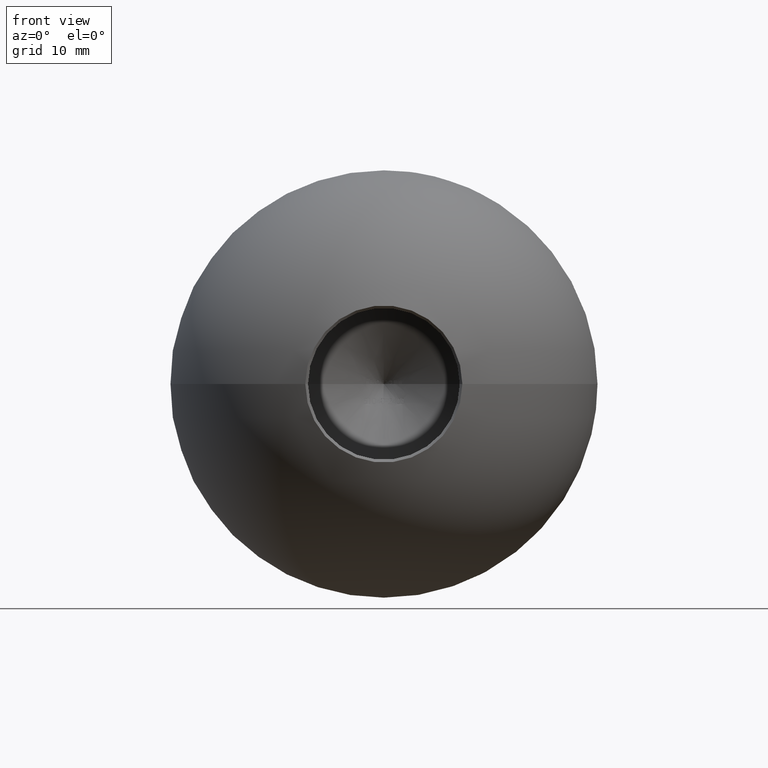
[diagram: clean part render]
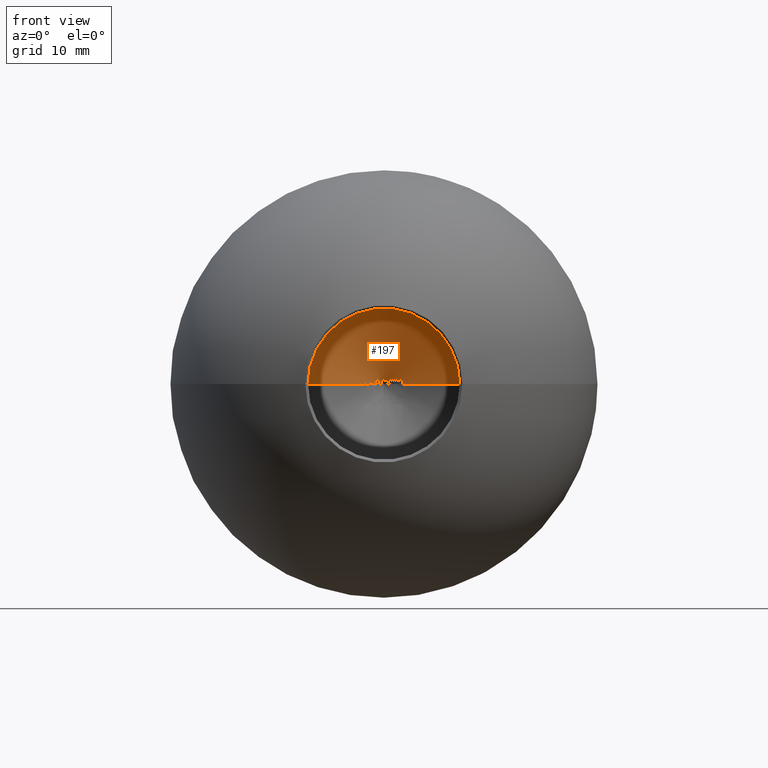
[diagram: same view with one face highlighted and labeled with its STEP entity id]
A machine part, front view. The second image highlights one B-rep face of the part: STEP entity #197.
In plain terms, the highlighted conical surface has half-angle 59 deg.
Its self-contained STEP definition (entity closure, byte-faithful):
#13 = CARTESIAN_POINT ( 'NONE',  ( -0.05112407260770841100, 7.427719554489412300, 0.3929516778922430600 ) ) ;
#39 = CARTESIAN_POINT ( 'NONE',  ( 0.4248278770097047000, 7.377664787778679000, 0.2233780712802910000 ) ) ;
#48 = CARTESIAN_POINT ( 'NONE',  ( 1.278819444444442300, 6.897247727923655700, 1.745121688784978200E-015 ) ) ;
#63 = CARTESIAN_POINT ( 'NONE',  ( 0.9870993589743567400, 7.028642397437910600, 0.3866987179487196300 ) ) ;
#83 = ORIENTED_EDGE ( 'NONE', *, *, #7445, .T. ) ;
#95 = CARTESIAN_POINT ( 'NONE',  ( 1.387366452991452700, 6.832026105174533000, 0.1288881814295849700 ) ) ;
#108 = CARTESIAN_POINT ( 'NONE',  ( -1.713007478632478500, 6.588370108922307900, 0.5291666666672597600 ) ) ;
#116 = CARTESIAN_POINT ( 'NONE',  ( 0.1981194911858967200, 7.400933670589566300, 0.3934829059829076900 ) ) ;
#138 = CARTESIAN_POINT ( 'NONE',  ( 8.673617379884035500E-016, 7.665639970937018400, 0.0000000000000000000 ) ) ;
#197 = ADVANCED_FACE ( 'NONE', ( #11920 ), #9842, .F. ) ;
#203 = ORIENTED_EDGE ( 'NONE', *, *, #8465, .T. ) ;
#212 = CARTESIAN_POINT ( 'NONE',  ( 1.403200872462310400, 6.791085221733770700, 0.3866987179487196300 ) ) ;
#226 = VERTEX_POINT ( 'NONE', #7231 ) ;
#246 = CARTESIAN_POINT ( 'NONE',  ( -0.2001335470085477100, 7.404014096670415800, 0.3866987179487196300 ) ) ;
#278 = CARTESIAN_POINT ( 'NONE',  ( 0.1981194911858967200, 7.400933670589566300, 0.3934829059829076900 ) ) ;
#283 = CARTESIAN_POINT ( 'NONE',  ( -1.342845219017095000, 6.835988341316069100, 0.3214009081196598200 ) ) ;
#284 = VERTEX_POINT ( 'NONE', #11262 ) ;
#298 = VERTEX_POINT ( 'NONE', #8493 ) ;
#312 = EDGE_CURVE ( 'NONE', #7335, #7857, #11801, .T. ) ;
#325 = CARTESIAN_POINT ( 'NONE',  ( -1.035966713408120700, 7.014612960035187000, 0.3173727964743606700 ) ) ;
#331 = CARTESIAN_POINT ( 'NONE',  ( 0.1981194911858967200, 7.400933670589566300, 0.3934829059829076900 ) ) ;
#344 = CARTESIAN_POINT ( 'NONE',  ( -1.056425280448718900, 7.026648915361210600, 0.1221153846153863300 ) ) ;
#381 = ORIENTED_EDGE ( 'NONE', *, *, #10756, .T. ) ;
#389 = B_SPLINE_CURVE_WITH_KNOTS ( 'NONE', 3,
 ( #6818, #11538, #5831, #10656 ),
 .UNSPECIFIED., .F., .F.,
 ( 4, 4 ),
 ( 0.001629869643565420700, 0.001873962925836377900 ),
 .UNSPECIFIED. ) ;
#395 = CARTESIAN_POINT ( 'NONE',  ( -0.7579895014815124500, 7.186516698284990000, 0.2490537826473119300 ) ) ;
#405 = B_SPLINE_CURVE_WITH_KNOTS ( 'NONE', 3,
 ( #6250, #660, #7221, #7263, #6212, #3482, #1600 ),
 .UNSPECIFIED., .F., .F.,
 ( 4, 3, 4 ),
 ( 0.0007582727489667025100, 0.0009006184890382959200, 0.001002754155950526800 ),
 .UNSPECIFIED. ) ;
#407 = CARTESIAN_POINT ( 'NONE',  ( 1.270315914121939300, 6.882358868798768900, 0.2936901107530262000 ) ) ;
#417 = ORIENTED_EDGE ( 'NONE', *, *, #4448, .T. ) ;
#439 = VERTEX_POINT ( 'NONE', #4907 ) ;
#457 = VERTEX_POINT ( 'NONE', #8575 ) ;
#480 = B_SPLINE_CURVE_WITH_KNOTS ( 'NONE', 3,
 ( #9343, #1931, #978, #11294 ),
 .UNSPECIFIED., .F., .F.,
 ( 4, 4 ),
 ( 0.0005285192480245008700, 0.0005828760944606321000 ),
 .UNSPECIFIED. ) ;
#504 = CARTESIAN_POINT ( 'NONE',  ( -1.035966713408120700, 7.014612960035187000, 0.3173727964743606700 ) ) ;
#521 = CARTESIAN_POINT ( 'NONE',  ( -1.284692810070597400, 6.885924715279952800, 0.1831730769230786300 ) ) ;
#523 = CARTESIAN_POINT ( 'NONE',  ( -1.306457583537958800, 6.878795959842933300, 0.08962736623736614100 ) ) ;
#537 = CARTESIAN_POINT ( 'NONE',  ( 0.2798642881807407700, 7.388278779032032300, 0.3677408391487088600 ) ) ;
#538 = CARTESIAN_POINT ( 'NONE',  ( -0.3561698717948735800, 7.359758014149958800, 0.3705558334403484800 ) ) ;
#561 = CARTESIAN_POINT ( 'NONE',  ( -0.2476228632478639500, 7.498408059297919900, 0.1364906053913171600 ) ) ;
#563 = ORIENTED_EDGE ( 'NONE', *, *, #8312, .T. ) ;
#572 = CARTESIAN_POINT ( 'NONE',  ( -0.1464960603632485800, 7.424364960522687800, 0.3738723624465828400 ) ) ;
#576 = CARTESIAN_POINT ( 'NONE',  ( -0.3561698717948734700, 7.426752959482414900, 0.1903205814718926500 ) ) ;
#586 = DIRECTION ( 'NONE',  ( 0.8571673007021137800, -0.5150380749100517100, 0.0000000000000000000 ) ) ;
#613 = ORIENTED_EDGE ( 'NONE', *, *, #8166, .T. ) ;
#644 = B_SPLINE_CURVE_WITH_KNOTS ( 'NONE', 3,
 ( #2671, #12094, #6427, #7391 ),
 .UNSPECIFIED., .F., .F.,
 ( 4, 4 ),
 ( 0.0004323024562962355200, 0.0005051996195430423200 ),
 .UNSPECIFIED. ) ;
#654 = CARTESIAN_POINT ( 'NONE',  ( -0.9056891025641042900, 7.121447056123837900, 1.745121688784978200E-015 ) ) ;
#660 = CARTESIAN_POINT ( 'NONE',  ( -1.496045342813489000, 6.753486583747974100, 0.2577991452991470500 ) ) ;
#687 = EDGE_CURVE ( 'NONE', #10430, #8207, #3573, .T. ) ;
#690 = VECTOR ( 'NONE', #5680, 1000.000000000000100 ) ;
#693 = CARTESIAN_POINT ( 'NONE',  ( -0.1674813876457005000, 7.428201761119960400, 0.3579710547640199700 ) ) ;
#700 = EDGE_CURVE ( 'NONE', #9540, #3086, #5213, .T. ) ;
#701 = B_SPLINE_CURVE_WITH_KNOTS ( 'NONE', 3,
 ( #6500, #39, #1887, #7385, #9267, #3648, #10226, #4584, #11219, #2742 ),
 .UNSPECIFIED., .F., .F.,
 ( 4, 2, 2, 2, 4 ),
 ( 0.0000000000000000000, 8.887169550606030700E-005, 0.0001777433910121206100, 0.0002666150865181809100, 0.0003554867820242412300 ),
 .UNSPECIFIED. ) ;
#714 = VERTEX_POINT ( 'NONE', #11337 ) ;
#733 = ORIENTED_EDGE ( 'NONE', *, *, #993, .T. ) ;
#735 = CARTESIAN_POINT ( 'NONE',  ( -1.627235483162912300, 6.637611208757829400, 0.5291666666666683400 ) ) ;
#739 = CARTESIAN_POINT ( 'NONE',  ( -0.4440439163917863100, 7.322998284210721700, 0.3578262262275220300 ) ) ;
#746 = B_SPLINE_CURVE_WITH_KNOTS ( 'NONE', 3,
 ( #11231, #13, #955, #2760, #10277, #6643, #2804, #11356, #7433, #4675, #6604, #9317, #5609 ),
 .UNSPECIFIED., .F., .F.,
 ( 4, 3, 3, 3, 4 ),
 ( 2.710505431213761100E-020, 4.734074943008879800E-005, 9.491457183015953800E-005, 0.0001384496987312346200, 0.0001759050593100016200 ),
 .UNSPECIFIED. ) ;
#757 = VERTEX_POINT ( 'NONE', #8444 ) ;
#855 = CARTESIAN_POINT ( 'NONE',  ( -1.078411163571266100, 6.982108999689682300, 0.3621396847870617100 ) ) ;
#904 = CARTESIAN_POINT ( 'NONE',  ( -1.541323536817870600, 6.686618852069287300, 0.5291666666666683400 ) ) ;
#931 = CARTESIAN_POINT ( 'NONE',  ( -1.665518162393162100, 6.625010045104700000, 0.4748931623931640900 ) ) ;
#943 = CARTESIAN_POINT ( 'NONE',  ( 1.453571182216306200, 6.768691931600660200, 0.3403741379040741100 ) ) ;
#955 = CARTESIAN_POINT ( 'NONE',  ( -0.03522397244553416400, 7.430073584206237300, 0.3907181555876264000 ) ) ;
#959 = ORIENTED_EDGE ( 'NONE', *, *, #6561, .T. ) ;
#978 = CARTESIAN_POINT ( 'NONE',  ( 0.9712816095517183800, 7.037491826759756800, 0.3866987179487196300 ) ) ;
#986 = EDGE_CURVE ( 'NONE', #11045, #10398, #12181, .T. ) ;
#987 = EDGE_CURVE ( 'NONE', #1832, #9104, #1783, .T. ) ;
#993 = EDGE_CURVE ( 'NONE', #3843, #5147, #6496, .T. ) ;
#1001 = ORIENTED_EDGE ( 'NONE', *, *, #3900, .T. ) ;
#1029 = CARTESIAN_POINT ( 'NONE',  ( -0.3561698717948735300, 7.451631521291384200, 1.745121688784978200E-015 ) ) ;
#1043 = CARTESIAN_POINT ( 'NONE',  ( -1.322011995031399300, 6.871277893714578900, 0.03412153390940602500 ) ) ;
#1051 = B_SPLINE_CURVE_WITH_KNOTS ( 'NONE', 3,
 ( #3846, #8676, #3055, #4040, #10621, #4979, #523, #9633, #7823, #11583, #2211, #1512, #1470, #3142, #9926, #1221 ),
 .UNSPECIFIED., .F., .F.,
 ( 4, 3, 3, 3, 3, 4 ),
 ( 0.0000000000000000000, 5.200546313377659700E-005, 0.0001044816825350012100, 0.0001518414543448327200, 0.0002073250983754838800, 0.0002424756323301302300 ),
 .UNSPECIFIED. ) ;
#1086 = CARTESIAN_POINT ( 'NONE',  ( -1.286778537504764500, 6.892465422340501700, 0.009729627450627722000 ) ) ;
#1103 = DIRECTION ( 'NONE',  ( -0.8571673007021136700, -0.5150380749100518200, 1.049727191138620200E-016 ) ) ;
#1147 = CARTESIAN_POINT ( 'NONE',  ( 1.419030498706607100, 6.781911768594210500, 0.3866987179487196300 ) ) ;
#1150 = CARTESIAN_POINT ( 'NONE',  ( 1.278819444444442300, 6.894140290146767200, 0.1320463187080274400 ) ) ;
#1199 = VERTEX_POINT ( 'NONE', #9416 ) ;
#1221 = CARTESIAN_POINT ( 'NONE',  ( -1.198787226228633400, 6.944920815044000100, 0.04070512820512994800 ) ) ;
#1233 = LINE ( 'NONE', #10538, #8285 ) ;
#1258 = B_SPLINE_CURVE_WITH_KNOTS ( 'NONE', 3,
 ( #6504, #4552, #3698, #3536, #6336, #7388 ),
 .UNSPECIFIED., .F., .F.,
 ( 4, 2, 4 ),
 ( 2.424349759030540200E-019, 9.862340729945643100E-005, 0.0001972468145989126200 ),
 .UNSPECIFIED. ) ;
#1267 = CARTESIAN_POINT ( 'NONE',  ( 1.682707935524442800, 6.632209617956722700, 0.3564608434965983500 ) ) ;
#1271 = CARTESIAN_POINT ( 'NONE',  ( -1.247535108924801900, 6.880584333509205800, 0.3886972820191098000 ) ) ;
#1293 = CARTESIAN_POINT ( 'NONE',  ( -1.028310549493973300, 7.044421204937726200, 0.1073516188627686400 ) ) ;
#1294 = VECTOR ( 'NONE', #7340, 1000.000000000000100 ) ;
#1314 = CARTESIAN_POINT ( 'NONE',  ( 1.134231436965809700, 6.944279395491488300, 0.3934829059829076900 ) ) ;
#1315 = VERTEX_POINT ( 'NONE', #4192 ) ;
#1319 = CARTESIAN_POINT ( 'NONE',  ( -1.056425280448718900, 7.026648915361210600, 0.1221153846153863300 ) ) ;
#1325 = ORIENTED_EDGE ( 'NONE', *, *, #5012, .T. ) ;
#1334 = ORIENTED_EDGE ( 'NONE', *, *, #5553, .F. ) ;
#1360 = CARTESIAN_POINT ( 'NONE',  ( 0.9870993589743567400, 7.042706094790369200, 0.3169487847222239300 ) ) ;
#1373 = CARTESIAN_POINT ( 'NONE',  ( -1.595508738180483300, 6.665463633347444600, 0.4748931623931640900 ) ) ;
#1383 = CARTESIAN_POINT ( 'NONE',  ( 1.664271747610635000, 6.641121785115444700, 0.3710756617157940900 ) ) ;
#1441 = CARTESIAN_POINT ( 'NONE',  ( 1.387366452991452700, 6.800250149226049400, 0.3866987179489915800 ) ) ;
#1444 = CARTESIAN_POINT ( 'NONE',  ( -0.9974127522193317900, 7.050329403461765800, 0.2329511510321149200 ) ) ;
#1466 = CARTESIAN_POINT ( 'NONE',  ( 0.3290331196581188800, 7.431275796676406900, 0.2094618055555572700 ) ) ;
#1470 = CARTESIAN_POINT ( 'NONE',  ( -1.229109325351597000, 6.926651800074149700, 0.04361298208248161300 ) ) ;
#1479 = B_SPLINE_CURVE_WITH_KNOTS ( 'NONE', 3,
 ( #2256, #1150, #3982, #4096 ),
 .UNSPECIFIED., .F., .F.,
 ( 4, 4 ),
 ( 0.0008203853337430799100, 0.001015804940406338000 ),
 .UNSPECIFIED. ) ;
#1512 = CARTESIAN_POINT ( 'NONE',  ( -1.244739828179907600, 6.917200665811281900, 0.04667709270720901000 ) ) ;
#1538 = B_SPLINE_CURVE_WITH_KNOTS ( 'NONE', 3,
 ( #7687, #3960, #9759, #5128 ),
 .UNSPECIFIED., .F., .F.,
 ( 4, 4 ),
 ( 0.001591577145397587000, 0.001977447997397950900 ),
 .UNSPECIFIED. ) ;
#1558 = CARTESIAN_POINT ( 'NONE',  ( -0.1765711993143898600, 7.430744199906305500, 0.3487844694389338800 ) ) ;
#1569 = DIRECTION ( 'NONE',  ( 1.000000000000000000, 6.670892938349179100E-017, 0.0000000000000000000 ) ) ;
#1600 = CARTESIAN_POINT ( 'NONE',  ( -1.665518162393162100, 6.652978363321548900, 0.2577991452991470500 ) ) ;
#1624 = CARTESIAN_POINT ( 'NONE',  ( -0.8581997863247881100, 7.055516914562453200, 0.5427350427350443600 ) ) ;
#1625 = ORIENTED_EDGE ( 'NONE', *, *, #5243, .T. ) ;
#1656 = VERTEX_POINT ( 'NONE', #11268 ) ;
#1695 = CARTESIAN_POINT ( 'NONE',  ( 0.5718419609183856800, 7.322042656327557400, -1.718575057541343800E-012 ) ) ;
#1706 = VECTOR ( 'NONE', #586, 1000.000000000000100 ) ;
#1724 = CARTESIAN_POINT ( 'NONE',  ( -0.1464960603632485800, 7.424364960522687800, 0.3738723624465828400 ) ) ;
#1730 = CARTESIAN_POINT ( 'NONE',  ( -0.5601195245726513500, 7.254341033088049800, 0.3934829059829076900 ) ) ;
#1731 = EDGE_CURVE ( 'NONE', #7201, #11388, #7791, .T. ) ;
#1751 = CARTESIAN_POINT ( 'NONE',  ( -1.342845219017095000, 6.835988341316069100, 0.3214009081196598200 ) ) ;
#1772 = CARTESIAN_POINT ( 'NONE',  ( -0.6153909450648267200, 7.295875786728748500, -1.685564860086615100E-012 ) ) ;
#1783 = B_SPLINE_CURVE_WITH_KNOTS ( 'NONE', 3,
 ( #1466, #11750, #6160, #5995 ),
 .UNSPECIFIED., .F., .F.,
 ( 4, 4 ),
 ( 0.0003632178153195876600, 0.0005763283688892425900 ),
 .UNSPECIFIED. ) ;
#1832 = VERTEX_POINT ( 'NONE', #8512 ) ;
#1841 = CARTESIAN_POINT ( 'NONE',  ( 1.581987847222221700, 6.686123936456590800, 0.3934829059829076900 ) ) ;
#1887 = CARTESIAN_POINT ( 'NONE',  ( 0.4299054499318511500, 7.366630264738955900, 0.2510754663132677100 ) ) ;
#1917 = VERTEX_POINT ( 'NONE', #931 ) ;
#1931 = CARTESIAN_POINT ( 'NONE',  ( 0.9554523784236030900, 7.046319434462779100, 0.3866987179487196300 ) ) ;
#1953 = ORIENTED_EDGE ( 'NONE', *, *, #4123, .T. ) ;
#1959 = EDGE_CURVE ( 'NONE', #8357, #5722, #3802, .T. ) ;
#1967 = CARTESIAN_POINT ( 'NONE',  ( 0.7404582119147443700, 7.170409218029370800, 0.3628013175215685200 ) ) ;
#1987 = CARTESIAN_POINT ( 'NONE',  ( 1.387366452991452700, 6.820779768109177100, 0.2594444209577815300 ) ) ;
#1988 = CARTESIAN_POINT ( 'NONE',  ( -1.339877136752137800, 6.853072200910764500, 0.1831730769230786300 ) ) ;
#2018 = CARTESIAN_POINT ( 'NONE',  ( -1.665518162393162100, 6.664895696879823600, 1.745121688784978200E-015 ) ) ;
#2029 = CARTESIAN_POINT ( 'NONE',  ( -1.135927483978445500, 6.983105879749492000, -8.256448666444354700E-013 ) ) ;
#2033 = B_SPLINE_CURVE_WITH_KNOTS ( 'NONE', 3,
 ( #10371, #2928, #10646, #9622 ),
 .UNSPECIFIED., .F., .F.,
 ( 4, 4 ),
 ( 0.001177809827445308800, 0.001231144252066578300 ),
 .UNSPECIFIED. ) ;
#2050 = ORIENTED_EDGE ( 'NONE', *, *, #8538, .T. ) ;
#2054 = B_SPLINE_CURVE_WITH_KNOTS ( 'NONE', 3,
 ( #2674, #10110, #9236, #7356 ),
 .UNSPECIFIED., .F., .F.,
 ( 4, 4 ),
 ( 0.001259497362026634800, 0.001329075773602557100 ),
 .UNSPECIFIED. ) ;
#2058 = ORIENTED_EDGE ( 'NONE', *, *, #3832, .T. ) ;
#2110 = ORIENTED_EDGE ( 'NONE', *, *, #986, .T. ) ;
#2129 = CARTESIAN_POINT ( 'NONE',  ( -0.5601195245726513500, 7.254341033088049800, 0.3934829059829076900 ) ) ;
#2134 = CARTESIAN_POINT ( 'NONE',  ( -1.198787226228633400, 6.944920815044000100, 0.04070512820512994800 ) ) ;
#2164 = DIRECTION ( 'NONE',  ( 0.8571673007021137800, -0.5150380749100517100, 0.0000000000000000000 ) ) ;
#2211 = CARTESIAN_POINT ( 'NONE',  ( -1.260190480245040300, 6.907798600788574100, 0.05255317615724211500 ) ) ;
#2216 = ORIENTED_EDGE ( 'NONE', *, *, #5935, .T. ) ;
#2225 = CARTESIAN_POINT ( 'NONE',  ( 1.262719910998006700, 6.883386053840350600, 0.3177132986746777400 ) ) ;
#2256 = CARTESIAN_POINT ( 'NONE',  ( 1.278819444444442300, 6.888139588473579000, 0.1974834735576940200 ) ) ;
#2293 = CARTESIAN_POINT ( 'NONE',  ( 1.216844166198804100, 6.901333071840213100, 0.3708808937965543700 ) ) ;
#2302 = CARTESIAN_POINT ( 'NONE',  ( -0.6548595648391180000, 7.272160647431673100, 0.01033408935832763100 ) ) ;
#2411 = EDGE_CURVE ( 'NONE', #2870, #3843, #11880, .T. ) ;
#2415 = CARTESIAN_POINT ( 'NONE',  ( -0.2476228632478639500, 7.389732402740495600, 0.3866987179487197900 ) ) ;
#2416 = EDGE_CURVE ( 'NONE', #7839, #10149, #4397, .T. ) ;
#2458 = CARTESIAN_POINT ( 'NONE',  ( 1.726575854700854300, 6.625922167297987100, 0.1319058211401304400 ) ) ;
#2511 = CARTESIAN_POINT ( 'NONE',  ( -0.3561698717948735800, 7.275580849302203400, 0.5427350427350443600 ) ) ;
#2578 = ORIENTED_EDGE ( 'NONE', *, *, #1731, .T. ) ;
#2601 = B_SPLINE_CURVE_WITH_KNOTS ( 'NONE', 3,
 ( #8195, #11997, #2939, #1967, #2899, #2822 ),
 .UNSPECIFIED., .F., .F.,
 ( 4, 2, 4 ),
 ( 0.0000000000000000000, 9.582566416305968500E-005, 0.0001916513283261193700 ),
 .UNSPECIFIED. ) ;
#2622 = CARTESIAN_POINT ( 'NONE',  ( 1.434855769230768900, 6.782708542528697900, 0.3169487847222239300 ) ) ;
#2626 = VERTEX_POINT ( 'NONE', #5438 ) ;
#2629 = VERTEX_POINT ( 'NONE', #7351 ) ;
#2646 = EDGE_CURVE ( 'NONE', #1656, #4766, #1258, .T. ) ;
#2650 = EDGE_CURVE ( 'NONE', #9248, #2901, #11272, .T. ) ;
#2652 = CARTESIAN_POINT ( 'NONE',  ( -1.383672564581591500, 6.822016372005362200, 0.2392944843563445700 ) ) ;
#2661 = CARTESIAN_POINT ( 'NONE',  ( -0.2001335470085477100, 7.439115420992068900, 0.3194928552350444500 ) ) ;
#2662 = CARTESIAN_POINT ( 'NONE',  ( -0.1402505534701018500, 7.424064391730839300, 0.3768568281037181200 ) ) ;
#2671 = CARTESIAN_POINT ( 'NONE',  ( 0.7835737179487157800, 7.158168716466022400, 0.3151467347756427000 ) ) ;
#2673 = CARTESIAN_POINT ( 'NONE',  ( 0.4427506604415487000, 7.392651450551897900, 0.1045200888548885700 ) ) ;
#2674 = CARTESIAN_POINT ( 'NONE',  ( 1.434855769230768900, 6.772730567994133600, 0.3866987179487196300 ) ) ;
#2696 = CARTESIAN_POINT ( 'NONE',  ( 1.525397585370740400, 6.720010118432837100, 0.3873334647179062000 ) ) ;
#2699 = CARTESIAN_POINT ( 'NONE',  ( -1.455208333333333000, 6.735246803537412700, 0.5291666666666683400 ) ) ;
#2707 = CARTESIAN_POINT ( 'NONE',  ( 8.673617379884035500E-016, 7.665639970937018400, 0.0000000000000000000 ) ) ;
#2730 = CARTESIAN_POINT ( 'NONE',  ( -1.356485598362130000, 6.830579234651815500, 0.3030847161020868700 ) ) ;
#2742 = CARTESIAN_POINT ( 'NONE',  ( 0.6271133814102541900, 7.220800169597798600, 0.3934829059829076900 ) ) ;
#2753 = CARTESIAN_POINT ( 'NONE',  ( -1.665518162393162100, 6.664895696879830700, 0.08576956379930890400 ) ) ;
#2760 = CARTESIAN_POINT ( 'NONE',  ( -0.02079407405069845500, 7.433696603204830400, 0.3854581128389900100 ) ) ;
#2778 = B_SPLINE_CURVE_WITH_KNOTS ( 'NONE', 3,
 ( #10738, #5214, #561, #4363, #6237, #10950 ),
 .UNSPECIFIED., .F., .F.,
 ( 4, 2, 4 ),
 ( 0.0008763575262919635900, 0.001081162962341683200, 0.001285968398391402900 ),
 .UNSPECIFIED. ) ;
#2803 = CARTESIAN_POINT ( 'NONE',  ( -1.665518162393162100, 6.664895696879823600, 1.745121688784978200E-015 ) ) ;
#2804 = CARTESIAN_POINT ( 'NONE',  ( 0.01864613191345273700, 7.447471740210606800, 0.3626138209288019600 ) ) ;
#2822 = CARTESIAN_POINT ( 'NONE',  ( 0.7835737179487157800, 7.158168716466022400, 0.3151467347756427000 ) ) ;
#2870 = VERTEX_POINT ( 'NONE', #325 ) ;
#2890 = ORIENTED_EDGE ( 'NONE', *, *, #11642, .T. ) ;
#2899 = CARTESIAN_POINT ( 'NONE',  ( 0.7638143519097382300, 7.163504474351230800, 0.3404776028070314300 ) ) ;
#2901 = VERTEX_POINT ( 'NONE', #5259 ) ;
#2928 = CARTESIAN_POINT ( 'NONE',  ( -0.8898809261279614400, 7.039364656642313800, 0.5427350427350443600 ) ) ;
#2939 = CARTESIAN_POINT ( 'NONE',  ( 0.6849315715523669500, 7.192690495032466400, 0.3886134361682457800 ) ) ;
#2948 = ORIENTED_EDGE ( 'NONE', *, *, #4055, .F. ) ;
#3035 = CARTESIAN_POINT ( 'NONE',  ( -1.665518162393162100, 6.625010045104700000, 0.4748931623931640900 ) ) ;
#3055 = CARTESIAN_POINT ( 'NONE',  ( -1.336835441720505300, 6.857501378863995400, 0.1484644909602564100 ) ) ;
#3079 = B_SPLINE_CURVE_WITH_KNOTS ( 'NONE', 3,
 ( #10810, #9827, #9952, #11781 ),
 .UNSPECIFIED., .F., .F.,
 ( 4, 4 ),
 ( 0.0004950406489253573300, 0.0007445853597216597700 ),
 .UNSPECIFIED. ) ;
#3086 = VERTEX_POINT ( 'NONE', #2699 ) ;
#3089 = CARTESIAN_POINT ( 'NONE',  ( -0.7632211538461555200, 7.192406808753115200, 0.1944093883547025900 ) ) ;
#3092 = CARTESIAN_POINT ( 'NONE',  ( -1.383794421931994000, 6.829592993126926400, 0.1468272505587854500 ) ) ;
#3101 = B_SPLINE_CURVE_WITH_KNOTS ( 'NONE', 3,
 ( #1624, #9959, #9129, #11984, #6307, #8184 ),
 .UNSPECIFIED., .F., .F.,
 ( 4, 2, 4 ),
 ( 0.003321069737641561800, 0.003596848178682631800, 0.003872626619723702100 ),
 .UNSPECIFIED. ) ;
#3142 = CARTESIAN_POINT ( 'NONE',  ( -1.219117226891511100, 6.932693618763631000, 0.04165419064811929500 ) ) ;
#3143 = CARTESIAN_POINT ( 'NONE',  ( 1.581987847222221700, 6.686123936456590800, 0.3934829059829076900 ) ) ;
#3161 = VECTOR ( 'NONE', #4728, 1000.000000000000100 ) ;
#3177 = CARTESIAN_POINT ( 'NONE',  ( -0.6574570863553702600, 7.212073397543920600, 0.3714457551093878800 ) ) ;
#3183 = B_SPLINE_CURVE_WITH_KNOTS ( 'NONE', 3,
 ( #11759, #4293, #4131, #1360 ),
 .UNSPECIFIED., .F., .F.,
 ( 4, 4 ),
 ( 0.001057559681582592200, 0.001127982621037620700 ),
 .UNSPECIFIED. ) ;
#3215 = CARTESIAN_POINT ( 'NONE',  ( 1.726504110921095500, 6.619824449712429400, 0.2218370612504840800 ) ) ;
#3239 = ORIENTED_EDGE ( 'NONE', *, *, #5078, .T. ) ;
#3256 = CARTESIAN_POINT ( 'NONE',  ( 0.8310630341880320700, 7.114876016008316200, 0.3866987179487196300 ) ) ;
#3258 = VERTEX_POINT ( 'NONE', #278 ) ;
#3268 = CARTESIAN_POINT ( 'NONE',  ( -1.171343290367452500, 6.961390607651432000, 0.04122937674194435800 ) ) ;
#3313 = CARTESIAN_POINT ( 'NONE',  ( -0.3561698717948735800, 7.318513501664423200, 0.4572711219201591200 ) ) ;
#3336 = B_SPLINE_CURVE_WITH_KNOTS ( 'NONE', 3,
 ( #3706, #4636, #4517, #12178 ),
 .UNSPECIFIED., .F., .F.,
 ( 4, 4 ),
 ( 0.001191853649000030000, 0.001245760141639479900 ),
 .UNSPECIFIED. ) ;
#3353 = EDGE_CURVE ( 'NONE', #2629, #6015, #1479, .T. ) ;
#3372 = CARTESIAN_POINT ( 'NONE',  ( -1.045332374279296800, 7.036859073787662000, 0.05182582435818740300 ) ) ;
#3394 = CARTESIAN_POINT ( 'NONE',  ( 1.726575854700854300, 6.628208534083433400, 0.06571016256062441100 ) ) ;
#3440 = CARTESIAN_POINT ( 'NONE',  ( 0.2962337679600837700, 7.389770342021593700, 0.3513793890083773400 ) ) ;
#3474 = CARTESIAN_POINT ( 'NONE',  ( 1.726575854700854300, 6.628208534083431600, 1.745121688784978200E-015 ) ) ;
#3478 = CARTESIAN_POINT ( 'NONE',  ( -0.1852163995978116400, 7.433297934523543500, 0.3396441387977298700 ) ) ;
#3482 = CARTESIAN_POINT ( 'NONE',  ( -1.636244322324482700, 6.670360862015480800, 0.2577991452991470500 ) ) ;
#3515 = ORIENTED_EDGE ( 'NONE', *, *, #6337, .T. ) ;
#3536 = CARTESIAN_POINT ( 'NONE',  ( 1.076997598257190400, 6.977982285701195100, 0.3871275609211936000 ) ) ;
#3573 = B_SPLINE_CURVE_WITH_KNOTS ( 'NONE', 3,
 ( #6499, #11054, #10224, #2661 ),
 .UNSPECIFIED., .F., .F.,
 ( 4, 4 ),
 ( 0.0004509527468033289400, 0.0005267708654143860700 ),
 .UNSPECIFIED. ) ;
#3589 = ORIENTED_EDGE ( 'NONE', *, *, #11079, .T. ) ;
#3609 = CARTESIAN_POINT ( 'NONE',  ( -0.1210814108393996200, 7.423235419184341500, 0.3848925274108555000 ) ) ;
#3614 = EDGE_CURVE ( 'NONE', #5147, #8407, #1051, .T. ) ;
#3636 = CARTESIAN_POINT ( 'NONE',  ( -1.386734801842285100, 6.822500114933673000, 0.2157239969728524400 ) ) ;
#3648 = CARTESIAN_POINT ( 'NONE',  ( 0.5052355336211181700, 7.294466837056528000, 0.3554560686072441000 ) ) ;
#3679 = CARTESIAN_POINT ( 'NONE',  ( -1.387366452991454000, 6.824057320512453700, 0.1922893295940187900 ) ) ;
#3695 = ORIENTED_EDGE ( 'NONE', *, *, #10670, .T. ) ;
#3698 = CARTESIAN_POINT ( 'NONE',  ( 1.026426794114609500, 7.011903626124505400, 0.3608424898012042600 ) ) ;
#3706 = CARTESIAN_POINT ( 'NONE',  ( -1.455208333333333000, 6.771382393503996500, 0.3120726495726513000 ) ) ;
#3715 = VECTOR ( 'NONE', #5158, 1000.000000000000100 ) ;
#3802 = B_SPLINE_CURVE_WITH_KNOTS ( 'NONE', 3,
 ( #3917, #1086, #1043, #4886, #9582, #3092, #4929, #7601 ),
 .UNSPECIFIED., .F., .F.,
 ( 4, 2, 2, 4 ),
 ( 6.608354809621706400E-005, 0.0002001519546335671000, 0.0002671861579022424300, 0.0003342203611709177000 ),
 .UNSPECIFIED. ) ;
#3832 = EDGE_CURVE ( 'NONE', #1315, #4891, #8480, .T. ) ;
#3843 = VERTEX_POINT ( 'NONE', #10179 ) ;
#3846 = CARTESIAN_POINT ( 'NONE',  ( -1.339877136752137800, 6.853072200910764500, 0.1831730769230786300 ) ) ;
#3878 = B_SPLINE_CURVE_WITH_KNOTS ( 'NONE', 3,
 ( #1695, #6297, #4511, #5445, #2673, #9235, #7271, #4556 ),
 .UNSPECIFIED., .F., .F.,
 ( 4, 2, 2, 4 ),
 ( 6.302875572045013300E-005, 0.0002006563166224356700, 0.0002694700970734287800, 0.0003382838775244219300 ),
 .UNSPECIFIED. ) ;
#3880 = CIRCLE ( 'NONE', #9467, 7.100000000000000500 ) ;
#3884 = ORIENTED_EDGE ( 'NONE', *, *, #9166, .T. ) ;
#3900 = EDGE_CURVE ( 'NONE', #298, #2870, #7062, .T. ) ;
#3917 = CARTESIAN_POINT ( 'NONE',  ( -1.249353555073598600, 6.914952620451217100, 2.604069494523272200E-012 ) ) ;
#3927 = ORIENTED_EDGE ( 'NONE', *, *, #8778, .T. ) ;
#3930 = CARTESIAN_POINT ( 'NONE',  ( 1.387366452991452700, 6.832026105174509000, 1.745121688784978200E-015 ) ) ;
#3960 = CARTESIAN_POINT ( 'NONE',  ( 0.9396100427350404500, 7.101065299014733200, 0.1293798527567779900 ) ) ;
#3968 = CARTESIAN_POINT ( 'NONE',  ( 0.8310630341880319600, 7.146755769312958000, 0.2609335868356066900 ) ) ;
#3982 = CARTESIAN_POINT ( 'NONE',  ( 1.278819444444442300, 6.897247727923659300, 0.06572241030992574700 ) ) ;
#3988 = CARTESIAN_POINT ( 'NONE',  ( 7.100000000000003200, 3.399529575841365900, 0.0000000000000000000 ) ) ;
#4032 = CARTESIAN_POINT ( 'NONE',  ( -0.6153909450648267200, 7.295875786728748500, -1.685564860086615100E-012 ) ) ;
#4038 = ORIENTED_EDGE ( 'NONE', *, *, #11330, .T. ) ;
#4040 = CARTESIAN_POINT ( 'NONE',  ( -1.331204033479629300, 6.861810811155839600, 0.1326460330122414800 ) ) ;
#4043 = CARTESIAN_POINT ( 'NONE',  ( -0.6096454098510573100, 7.231043912609723500, 0.3897251748211869600 ) ) ;
#4055 = EDGE_CURVE ( 'NONE', #8357, #7857, #11439, .T. ) ;
#4090 = B_SPLINE_CURVE_WITH_KNOTS ( 'NONE', 3,
 ( #2134, #3268, #4171, #8855, #7903, #1319 ),
 .UNSPECIFIED., .F., .F.,
 ( 4, 2, 4 ),
 ( 0.0000000000000000000, 9.478947945274164500E-005, 0.0001895789589054832900 ),
 .UNSPECIFIED. ) ;
#4096 = CARTESIAN_POINT ( 'NONE',  ( 1.278819444444442300, 6.897247727923655700, 1.745121688784978200E-015 ) ) ;
#4122 = CARTESIAN_POINT ( 'NONE',  ( -0.9938835470085479700, 7.058396994290151700, 0.1831730769230786300 ) ) ;
#4123 = EDGE_CURVE ( 'NONE', #11462, #10370, #746, .T. ) ;
#4131 = CARTESIAN_POINT ( 'NONE',  ( 0.9870993589743567400, 7.038430600824401800, 0.3402238910877574100 ) ) ;
#4142 = CARTESIAN_POINT ( 'NONE',  ( -0.3561698717948735800, 7.275580849302203400, 0.5427350427350443600 ) ) ;
#4161 = CARTESIAN_POINT ( 'NONE',  ( 1.710145773918358100, 6.620504832382449600, 0.3183697774840312800 ) ) ;
#4171 = CARTESIAN_POINT ( 'NONE',  ( -1.144205029093450900, 6.977605074548116600, 0.04702319559875520900 ) ) ;
#4181 = ORIENTED_EDGE ( 'NONE', *, *, #4699, .T. ) ;
#4192 = CARTESIAN_POINT ( 'NONE',  ( 1.726575854700854300, 6.628208534083431600, 1.745121688784978200E-015 ) ) ;
#4293 = CARTESIAN_POINT ( 'NONE',  ( 0.9870993589743567400, 7.033724518870098300, 0.3635107547796419000 ) ) ;
#4363 = CARTESIAN_POINT ( 'NONE',  ( -0.2476228632478639500, 7.449874015153003600, 0.2647950540996680300 ) ) ;
#4388 = ORIENTED_EDGE ( 'NONE', *, *, #6292, .T. ) ;
#4397 = B_SPLINE_CURVE_WITH_KNOTS ( 'NONE', 3,
 ( #11653, #5004, #10760, #4142 ),
 .UNSPECIFIED., .F., .F.,
 ( 4, 4 ),
 ( 0.0006922032913609421700, 0.0007422051922644058000 ),
 .UNSPECIFIED. ) ;
#4407 = ORIENTED_EDGE ( 'NONE', *, *, #4431, .T. ) ;
#4431 = EDGE_CURVE ( 'NONE', #2626, #9939, #5239, .T. ) ;
#4448 = EDGE_CURVE ( 'NONE', #2901, #7839, #3079, .T. ) ;
#4470 = VERTEX_POINT ( 'NONE', #7011 ) ;
#4481 = CARTESIAN_POINT ( 'NONE',  ( 1.474668439244041500, 6.753383026722180400, 0.3612204724755958000 ) ) ;
#4494 = LINE ( 'NONE', #9406, #690 ) ;
#4504 = CARTESIAN_POINT ( 'NONE',  ( -0.09430882788232894400, 7.423609212948149700, 0.3918519830906634900 ) ) ;
#4511 = CARTESIAN_POINT ( 'NONE',  ( 0.4969361190968368800, 7.367216534661125100, 0.03365518790540143100 ) ) ;
#4513 = CARTESIAN_POINT ( 'NONE',  ( -1.455208333333333000, 6.771382393503996500, 0.3120726495726513000 ) ) ;
#4517 = CARTESIAN_POINT ( 'NONE',  ( -1.455208333333333000, 6.775751821918443200, 0.2758873694724268100 ) ) ;
#4540 = EDGE_CURVE ( 'NONE', #4470, #9621, #2778, .T. ) ;
#4552 = CARTESIAN_POINT ( 'NONE',  ( 1.005612657392077400, 7.027858149293379600, 0.3401211589749972300 ) ) ;
#4556 = CARTESIAN_POINT ( 'NONE',  ( 0.4240117521367499600, 7.385365074109919300, 0.1944093883547025900 ) ) ;
#4584 = CARTESIAN_POINT ( 'NONE',  ( 0.5743681984322189800, 7.248867786438402100, 0.3889075040730031700 ) ) ;
#4587 = LINE ( 'NONE', #9063, #3715 ) ;
#4605 = B_SPLINE_CURVE_WITH_KNOTS ( 'NONE', 3,
 ( #3679, #3636, #2652, #10251, #2730, #1751 ),
 .UNSPECIFIED., .F., .F.,
 ( 4, 2, 4 ),
 ( 0.0000000000000000000, 7.037804051329399600E-005, 0.0001407560810265879900 ),
 .UNSPECIFIED. ) ;
#4636 = CARTESIAN_POINT ( 'NONE',  ( -1.455208333333333000, 6.773658821016696600, 0.2940045171603272700 ) ) ;
#4656 = CARTESIAN_POINT ( 'NONE',  ( -1.191685029380342900, 6.911579761847352000, 0.3934829059829076900 ) ) ;
#4660 = CARTESIAN_POINT ( 'NONE',  ( 1.581987847222221700, 6.686123936456590800, 0.3934829059829076900 ) ) ;
#4675 = CARTESIAN_POINT ( 'NONE',  ( 0.04309207885259076800, 7.465015963870802000, 0.3311020319034365700 ) ) ;
#4678 = B_SPLINE_CURVE_WITH_KNOTS ( 'NONE', 3,
 ( #6064, #9912, #1373, #9871 ),
 .UNSPECIFIED., .F., .F.,
 ( 4, 4 ),
 ( 0.0007861505374272721700, 0.001028687937674528400 ),
 .UNSPECIFIED. ) ;
#4683 = ORIENTED_EDGE ( 'NONE', *, *, #687, .T. ) ;
#4687 = EDGE_CURVE ( 'NONE', #7991, #9248, #6752, .T. ) ;
#4699 = EDGE_CURVE ( 'NONE', #9657, #298, #8947, .T. ) ;
#4728 = DIRECTION ( 'NONE',  ( -0.8571673007021136700, -0.5150380749100518200, 1.049727191138620200E-016 ) ) ;
#4745 = CARTESIAN_POINT ( 'NONE',  ( 0.05628756009615312700, 7.482180693780831500, 0.3000943175747879900 ) ) ;
#4766 = VERTEX_POINT ( 'NONE', #1314 ) ;
#4874 = CARTESIAN_POINT ( 'NONE',  ( 1.387366452991452700, 6.800250149226049400, 0.3866987179489915800 ) ) ;
#4881 = CARTESIAN_POINT ( 'NONE',  ( 8.673617379884035500E-016, 7.665639970937018400, 0.0000000000000000000 ) ) ;
#4886 = CARTESIAN_POINT ( 'NONE',  ( -1.359464049011052600, 6.847234462249661000, 0.08558561667988151500 ) ) ;
#4891 = VERTEX_POINT ( 'NONE', #3988 ) ;
#4907 = CARTESIAN_POINT ( 'NONE',  ( -0.9056891025641042900, 7.121447056123837900, 1.745121688784978200E-015 ) ) ;
#4916 = CARTESIAN_POINT ( 'NONE',  ( -1.665518162393162100, 6.641472759283821000, 0.3663578236693665300 ) ) ;
#4929 = CARTESIAN_POINT ( 'NONE',  ( -1.386712833582677100, 6.826326645099562100, 0.1694951814833220700 ) ) ;
#4979 = CARTESIAN_POINT ( 'NONE',  ( -1.316873170836183600, 6.872045850062469300, 0.1019429019742976600 ) ) ;
#5004 = CARTESIAN_POINT ( 'NONE',  ( -0.3879063321493665400, 7.264873200275334700, 0.5427350427350443600 ) ) ;
#5012 = EDGE_CURVE ( 'NONE', #10370, #3258, #5842, .T. ) ;
#5048 = CARTESIAN_POINT ( 'NONE',  ( 0.6271133814102541900, 7.220800169597798600, 0.3934829059829076900 ) ) ;
#5052 = B_SPLINE_CURVE_WITH_KNOTS ( 'NONE', 3,
 ( #7219, #3313, #538, #576, #7128, #8039 ),
 .UNSPECIFIED., .F., .F.,
 ( 4, 2, 4 ),
 ( 0.0009889722475696139700, 0.001275798170993113600, 0.001562624094416613500 ),
 .UNSPECIFIED. ) ;
#5064 = CARTESIAN_POINT ( 'NONE',  ( -1.219391340500216400, 6.895920321682102600, 0.3926934351310479300 ) ) ;
#5078 = EDGE_CURVE ( 'NONE', #10398, #11212, #5467, .T. ) ;
#5114 = B_SPLINE_CURVE_WITH_KNOTS ( 'NONE', 3,
 ( #344, #6889, #1293, #8871 ),
 .UNSPECIFIED., .F., .F.,
 ( 4, 4 ),
 ( 2.589674448291843100E-007, 5.484452315193673400E-005 ),
 .UNSPECIFIED. ) ;
#5128 = CARTESIAN_POINT ( 'NONE',  ( 0.9396100427350404500, 7.055122136220989900, 0.3866987179487195200 ) ) ;
#5138 = CARTESIAN_POINT ( 'NONE',  ( 0.7835737179487157800, 7.140608914440671000, 0.3866987179487196300 ) ) ;
#5142 = EDGE_CURVE ( 'NONE', #4470, #11985, #4494, .T. ) ;
#5147 = VERTEX_POINT ( 'NONE', #1988 ) ;
#5158 = DIRECTION ( 'NONE',  ( 0.8571673007021137800, -0.5150380749100517100, 0.0000000000000000000 ) ) ;
#5213 = B_SPLINE_CURVE_WITH_KNOTS ( 'NONE', 3,
 ( #12083, #735, #904, #9146 ),
 .UNSPECIFIED., .F., .F.,
 ( 4, 4 ),
 ( 0.001674493932667211700, 0.001971188899905523800 ),
 .UNSPECIFIED. ) ;
#5214 = CARTESIAN_POINT ( 'NONE',  ( -0.2476228632478639500, 7.516853144040530000, 0.06938495000153741000 ) ) ;
#5223 = VERTEX_POINT ( 'NONE', #11199 ) ;
#5224 = CARTESIAN_POINT ( 'NONE',  ( -0.1519536589145233900, 7.425264888088286800, 0.3701252838174325900 ) ) ;
#5225 = EDGE_CURVE ( 'NONE', #9104, #9847, #6233, .T. ) ;
#5239 = B_SPLINE_CURVE_WITH_KNOTS ( 'NONE', 3,
 ( #7930, #11898, #3372, #8873, #11854, #5284 ),
 .UNSPECIFIED., .F., .F.,
 ( 4, 2, 4 ),
 ( 0.0000000000000000000, 8.830037477417971300E-005, 0.0001766007495483594300 ),
 .UNSPECIFIED. ) ;
#5243 = EDGE_CURVE ( 'NONE', #9396, #7583, #11148, .T. ) ;
#5259 = CARTESIAN_POINT ( 'NONE',  ( -0.4036591880341897600, 7.359143448027817900, 0.3118606436965829000 ) ) ;
#5278 = DIRECTION ( 'NONE',  ( 7.032077350950289500E-017, -1.000000000000000000, -0.0000000000000000000 ) ) ;
#5284 = CARTESIAN_POINT ( 'NONE',  ( -1.135927483978445500, 6.983105879749492000, -8.256448666444354700E-013 ) ) ;
#5361 = CARTESIAN_POINT ( 'NONE',  ( 8.673617379884035500E-016, 7.665639970937018400, 0.0000000000000000000 ) ) ;
#5373 = EDGE_CURVE ( 'NONE', #457, #9396, #7511, .T. ) ;
#5378 = EDGE_CURVE ( 'NONE', #3086, #6570, #11908, .T. ) ;
#5391 = VERTEX_POINT ( 'NONE', #8976 ) ;
#5416 = VERTEX_POINT ( 'NONE', #10247 ) ;
#5432 = CARTESIAN_POINT ( 'NONE',  ( -0.1275474555417482900, 7.423446167453852800, 0.3823658772373891300 ) ) ;
#5438 = CARTESIAN_POINT ( 'NONE',  ( -1.014236111111112000, 7.053272776065288200, 0.09996077056624104500 ) ) ;
#5442 = ORIENTED_EDGE ( 'NONE', *, *, #700, .T. ) ;
#5445 = CARTESIAN_POINT ( 'NONE',  ( 0.4546817830302646300, 7.387999474077872700, 0.08441678584333028900 ) ) ;
#5467 = B_SPLINE_CURVE_WITH_KNOTS ( 'NONE', 3,
 ( #8602, #3968, #10464, #9549 ),
 .UNSPECIFIED., .F., .F.,
 ( 4, 4 ),
 ( 0.0005198890963786977200, 0.0009085536769252106400 ),
 .UNSPECIFIED. ) ;
#5500 = DIRECTION ( 'NONE',  ( -0.8571673007021136700, -0.5150380749100518200, 1.049727191138620200E-016 ) ) ;
#5516 = CARTESIAN_POINT ( 'NONE',  ( 8.673617379884035500E-016, 7.665639970937018400, 0.0000000000000000000 ) ) ;
#5553 = EDGE_CURVE ( 'NONE', #5416, #714, #10965, .T. ) ;
#5568 = ORIENTED_EDGE ( 'NONE', *, *, #987, .T. ) ;
#5579 = VERTEX_POINT ( 'NONE', #63 ) ;
#5606 = EDGE_CURVE ( 'NONE', #757, #5391, #2033, .T. ) ;
#5609 = CARTESIAN_POINT ( 'NONE',  ( 0.05628756009615312700, 7.482180693780831500, 0.3000943175747879900 ) ) ;
#5638 = CARTESIAN_POINT ( 'NONE',  ( 0.4240117521367499600, 7.385365074109919300, 0.1944093883547025900 ) ) ;
#5680 = DIRECTION ( 'NONE',  ( -0.8571673007021136700, -0.5150380749100518200, 1.049727191138620200E-016 ) ) ;
#5686 = EDGE_CURVE ( 'NONE', #6749, #7991, #9860, .T. ) ;
#5687 = ORIENTED_EDGE ( 'NONE', *, *, #5378, .T. ) ;
#5722 = VERTEX_POINT ( 'NONE', #7142 ) ;
#5792 = ORIENTED_EDGE ( 'NONE', *, *, #3614, .T. ) ;
#5800 = CARTESIAN_POINT ( 'NONE',  ( -0.7632211538461555200, 7.192406808753115200, 0.1944093883547025900 ) ) ;
#5831 = CARTESIAN_POINT ( 'NONE',  ( -1.525361420801183200, 6.730167250097149900, 0.3120726495726513000 ) ) ;
#5839 = ORIENTED_EDGE ( 'NONE', *, *, #12036, .T. ) ;
#5842 = B_SPLINE_CURVE_WITH_KNOTS ( 'NONE', 3,
 ( #8409, #8526, #9466, #12164, #10343, #116 ),
 .UNSPECIFIED., .F., .F.,
 ( 4, 2, 4 ),
 ( 0.0000000000000000000, 9.791567227050300600E-005, 0.0001958313445410060700 ),
 .UNSPECIFIED. ) ;
#5869 = VERTEX_POINT ( 'NONE', #8174 ) ;
#5919 = CARTESIAN_POINT ( 'NONE',  ( -1.323150783410402800, 6.844196032439861600, 0.3450018988909712700 ) ) ;
#5922 = CARTESIAN_POINT ( 'NONE',  ( 0.8310630341880320700, 7.114876016008316200, 0.3866987179487196300 ) ) ;
#5935 = EDGE_CURVE ( 'NONE', #9847, #5966, #3878, .T. ) ;
#5937 = CARTESIAN_POINT ( 'NONE',  ( -1.022583629315689800, 7.025516842890853700, 0.2991046988335263600 ) ) ;
#5966 = VERTEX_POINT ( 'NONE', #5638 ) ;
#5995 = CARTESIAN_POINT ( 'NONE',  ( 0.3290331196581188800, 7.467936926978673300, 1.745121688784978200E-015 ) ) ;
#6015 = VERTEX_POINT ( 'NONE', #48 ) ;
#6038 = CARTESIAN_POINT ( 'NONE',  ( 1.624168930705930200, 6.662082179860813200, 0.3896531574412155900 ) ) ;
#6051 = CARTESIAN_POINT ( 'NONE',  ( 1.278748215002681200, 6.885964629935021900, 0.2216624680569216900 ) ) ;
#6064 = CARTESIAN_POINT ( 'NONE',  ( -1.455208333333333000, 6.745880576800989700, 0.4748931623931640900 ) ) ;
#6073 = ORIENTED_EDGE ( 'NONE', *, *, #5142, .F. ) ;
#6101 = B_SPLINE_CURVE_WITH_KNOTS ( 'NONE', 3,
 ( #9776, #7796, #11685, #2293, #10599, #2225, #407, #11724, #6051, #6877 ),
 .UNSPECIFIED., .F., .F.,
 ( 4, 2, 2, 2, 4 ),
 ( 0.0000000000000000000, 7.191098164294610900E-005, 0.0001438219632858922200, 0.0002157329449288383300, 0.0002876439265717844400 ),
 .UNSPECIFIED. ) ;
#6119 = CARTESIAN_POINT ( 'NONE',  ( -1.174268269919728200, 6.951535807037796400, 0.1831730769230786300 ) ) ;
#6160 = CARTESIAN_POINT ( 'NONE',  ( 0.3290331196581188800, 7.467936926978677700, 0.07138691651946990600 ) ) ;
#6208 = CARTESIAN_POINT ( 'NONE',  ( 0.2414083665372638600, 7.390921156553046600, 0.3888942171950521800 ) ) ;
#6212 = CARTESIAN_POINT ( 'NONE',  ( -1.606965787384098300, 6.687735457405215900, 0.2577991452991470500 ) ) ;
#6233 = LINE ( 'NONE', #138, #11864 ) ;
#6237 = CARTESIAN_POINT ( 'NONE',  ( -0.2476228632478639500, 7.420406207848664300, 0.3260793989289278400 ) ) ;
#6246 = CARTESIAN_POINT ( 'NONE',  ( 0.3282098184729229700, 7.401792759519068500, 0.2946327035781490800 ) ) ;
#6250 = CARTESIAN_POINT ( 'NONE',  ( -1.455208333333333000, 6.777647723165650900, 0.2577991452991470500 ) ) ;
#6279 = CARTESIAN_POINT ( 'NONE',  ( -0.2001335470085477100, 7.439115420992068900, 0.3194928552350444500 ) ) ;
#6292 = EDGE_CURVE ( 'NONE', #3258, #1832, #7180, .T. ) ;
#6297 = CARTESIAN_POINT ( 'NONE',  ( 0.5334101365652355000, 7.345134826084867900, 0.01006262467085580800 ) ) ;
#6307 = CARTESIAN_POINT ( 'NONE',  ( -0.8581997863247881100, 7.149981516076607600, 0.09234917197876536800 ) ) ;
#6314 = ORIENTED_EDGE ( 'NONE', *, *, #2646, .T. ) ;
#6322 = CARTESIAN_POINT ( 'NONE',  ( 1.726575854700854300, 6.621444495089805900, 0.1974834735576940200 ) ) ;
#6336 = CARTESIAN_POINT ( 'NONE',  ( 1.105319173278442200, 6.960875949885340800, 0.3925490969725745600 ) ) ;
#6337 = EDGE_CURVE ( 'NONE', #8207, #9543, #11344, .T. ) ;
#6376 = CARTESIAN_POINT ( 'NONE',  ( -1.249353555073598600, 6.914952620451217100, 2.604069494523272200E-012 ) ) ;
#6403 = EDGE_CURVE ( 'NONE', #11595, #1199, #2601, .T. ) ;
#6422 = CARTESIAN_POINT ( 'NONE',  ( -0.4036591880341897600, 7.359143448027817900, 0.3118606436965829000 ) ) ;
#6423 = EDGE_LOOP ( 'NONE', ( #6073, #8644, #6671, #4683, #3515, #9459, #1953, #1325, #4388, #5568, #10004, #2216, #2050, #10334, #9095, #2110, #3239, #959, #11605, #203, #7366, #6314, #10844, #11699, #9256, #2578, #5839, #7726, #9336, #1625, #6608, #2058, #3927, #1334, #3695, #5442, #5687, #12118, #613, #381, #10718, #563, #8250, #2948, #11055, #83, #4181, #1001, #9044, #733, #5792, #9378, #2890, #4407, #10389, #4038, #8208, #3589, #8896, #11743, #7829, #7478, #417, #11007, #3884 ) ) ;
#6427 = CARTESIAN_POINT ( 'NONE',  ( 0.7835737179487157800, 7.146912306405117700, 0.3629937652421250700 ) ) ;
#6439 = CARTESIAN_POINT ( 'NONE',  ( 0.8310630341880319600, 7.166286921763878900, 1.745121688784978200E-015 ) ) ;
#6456 = CARTESIAN_POINT ( 'NONE',  ( -1.132021955750401900, 6.946646576406809700, 0.3878204280992205700 ) ) ;
#6496 = B_SPLINE_CURVE_WITH_KNOTS ( 'NONE', 3,
 ( #4122, #7024, #6945, #6119, #9841, #521, #10864 ),
 .UNSPECIFIED., .F., .F.,
 ( 4, 3, 4 ),
 ( 0.0004599290789556504800, 0.0006695889610922225600, 0.0008622559960742878600 ),
 .UNSPECIFIED. ) ;
#6499 = CARTESIAN_POINT ( 'NONE',  ( -0.2001335470085477100, 7.404014096670415800, 0.3866987179487196300 ) ) ;
#6500 = CARTESIAN_POINT ( 'NONE',  ( 0.4240117521367499600, 7.385365074109919300, 0.1944093883547025900 ) ) ;
#6504 = CARTESIAN_POINT ( 'NONE',  ( 0.9870993589743567400, 7.042706094790369200, 0.3169487847222239300 ) ) ;
#6561 = EDGE_CURVE ( 'NONE', #11212, #9994, #7281, .T. ) ;
#6570 = VERTEX_POINT ( 'NONE', #7140 ) ;
#6604 = CARTESIAN_POINT ( 'NONE',  ( 0.04845395435313306500, 7.470546069221217800, 0.3211229367574691100 ) ) ;
#6608 = ORIENTED_EDGE ( 'NONE', *, *, #11402, .T. ) ;
#6643 = CARTESIAN_POINT ( 'NONE',  ( 0.007412038615005132900, 7.441959831164451700, 0.3723769714719793500 ) ) ;
#6671 = ORIENTED_EDGE ( 'NONE', *, *, #11250, .T. ) ;
#6731 = EDGE_CURVE ( 'NONE', #1199, #11045, #644, .T. ) ;
#6749 = VERTEX_POINT ( 'NONE', #1772 ) ;
#6752 = B_SPLINE_CURVE_WITH_KNOTS ( 'NONE', 3,
 ( #5800, #7579, #395, #8804, #10549, #9768, #3177, #4043, #9681, #2129 ),
 .UNSPECIFIED., .F., .F.,
 ( 4, 2, 2, 2, 4 ),
 ( 0.0000000000000000000, 8.155571166221209900E-005, 0.0001631114233244242000, 0.0002446671349866363000, 0.0003262228466488484000 ),
 .UNSPECIFIED. ) ;
#6818 = CARTESIAN_POINT ( 'NONE',  ( -1.665518162393162100, 6.647479907767833000, 0.3120726495726513000 ) ) ;
#6858 = CARTESIAN_POINT ( 'NONE',  ( 1.717918690679696200, 6.618472101199954800, 0.2943356654103215800 ) ) ;
#6877 = CARTESIAN_POINT ( 'NONE',  ( 1.278819444444442300, 6.888139588473579000, 0.1974834735576940200 ) ) ;
#6889 = CARTESIAN_POINT ( 'NONE',  ( -1.042373142122130500, 7.035545571873550200, 0.1147362466499165700 ) ) ;
#6920 = B_SPLINE_CURVE_WITH_KNOTS ( 'NONE', 3,
 ( #2415, #9807, #8937, #11680 ),
 .UNSPECIFIED., .F., .F.,
 ( 4, 4 ),
 ( 0.0004902905663435396600, 0.0005396768427707787300 ),
 .UNSPECIFIED. ) ;
#6945 = CARTESIAN_POINT ( 'NONE',  ( -1.114173629613289600, 6.987212860756902600, 0.1831730769230786300 ) ) ;
#6958 = EDGE_CURVE ( 'NONE', #8407, #6983, #4090, .T. ) ;
#6983 = VERTEX_POINT ( 'NONE', #11639 ) ;
#7011 = CARTESIAN_POINT ( 'NONE',  ( -0.2476228632478639500, 7.516853144040530000, 1.745121688784978200E-015 ) ) ;
#7022 = CARTESIAN_POINT ( 'NONE',  ( -1.455208333333333000, 6.742506671822393800, 0.4929925416781731900 ) ) ;
#7024 = CARTESIAN_POINT ( 'NONE',  ( -1.054051281195882400, 7.022843348648691200, 0.1831730769230786300 ) ) ;
#7031 = EDGE_CURVE ( 'NONE', #5579, #1656, #3183, .T. ) ;
#7035 = CARTESIAN_POINT ( 'NONE',  ( -0.1464960603632485800, 7.424364960522687800, 0.3738723624465828400 ) ) ;
#7052 = CARTESIAN_POINT ( 'NONE',  ( -1.011582755905474000, 7.035247999989590700, 0.2789898398214019100 ) ) ;
#7062 = B_SPLINE_CURVE_WITH_KNOTS ( 'NONE', 3,
 ( #4656, #12127, #6456, #855, #9339, #11097 ),
 .UNSPECIFIED., .F., .F.,
 ( 4, 2, 4 ),
 ( 0.0000000000000000000, 0.0001030957192344111200, 0.0002061914384688222500 ),
 .UNSPECIFIED. ) ;
#7126 = CARTESIAN_POINT ( 'NONE',  ( 0.3290331196581188800, 7.431275796676406900, 0.2094618055555572700 ) ) ;
#7128 = CARTESIAN_POINT ( 'NONE',  ( -0.3561698717948735800, 7.451631521291394800, 0.09555327839562885500 ) ) ;
#7140 = CARTESIAN_POINT ( 'NONE',  ( -1.455208333333333000, 6.745880576800989700, 0.4748931623931640900 ) ) ;
#7142 = CARTESIAN_POINT ( 'NONE',  ( -1.387366452991454000, 6.824057320512453700, 0.1922893295940187900 ) ) ;
#7166 = CARTESIAN_POINT ( 'NONE',  ( -0.9056891025641042900, 7.031217059635998200, 0.5427350427350442500 ) ) ;
#7180 = B_SPLINE_CURVE_WITH_KNOTS ( 'NONE', 3,
 ( #331, #9977, #6208, #537, #3440, #6246, #9890, #7126 ),
 .UNSPECIFIED., .F., .F.,
 ( 4, 2, 2, 4 ),
 ( 0.0000000000000000000, 6.573407523536828700E-005, 0.0001314681504707366300, 0.0002629363009414734200 ),
 .UNSPECIFIED. ) ;
#7201 = VERTEX_POINT ( 'NONE', #3930 ) ;
#7219 = CARTESIAN_POINT ( 'NONE',  ( -0.3561698717948735800, 7.275580849302203400, 0.5427350427350443600 ) ) ;
#7221 = CARTESIAN_POINT ( 'NONE',  ( -1.536868871710610900, 6.729302650739801300, 0.2577991452991470500 ) ) ;
#7231 = CARTESIAN_POINT ( 'NONE',  ( 0.9396100427350404500, 7.055122136220989900, 0.3866987179487195200 ) ) ;
#7249 = CARTESIAN_POINT ( 'NONE',  ( -1.455208333333333000, 6.738956949150767700, 0.5110983577884470300 ) ) ;
#7259 = CARTESIAN_POINT ( 'NONE',  ( -0.1624943367080686200, 7.427151616328280200, 0.3621244966052876700 ) ) ;
#7263 = CARTESIAN_POINT ( 'NONE',  ( -1.577681751863553500, 6.705100774472365200, 0.2577991452991470500 ) ) ;
#7271 = CARTESIAN_POINT ( 'NONE',  ( 0.4246267918715362900, 7.390735432877069600, 0.1716231324943737200 ) ) ;
#7281 = LINE ( 'NONE', #5361, #1706 ) ;
#7308 = CARTESIAN_POINT ( 'NONE',  ( -0.4225331317246423000, 7.341257415159795100, 0.3361200866071061800 ) ) ;
#7332 = B_SPLINE_CURVE_WITH_KNOTS ( 'NONE', 3,
 ( #1724, #2662, #11100, #5432, #3609, #9224, #12044, #4504, #9147, #9107 ),
 .UNSPECIFIED., .F., .F.,
 ( 4, 3, 3, 4 ),
 ( 0.0000000000000000000, 2.078541793869843900E-005, 4.165160414437711500E-005, 8.320017834670840300E-005 ),
 .UNSPECIFIED. ) ;
#7335 = VERTEX_POINT ( 'NONE', #8337 ) ;
#7340 = DIRECTION ( 'NONE',  ( 0.8571673007021137800, -0.5150380749100517100, 0.0000000000000000000 ) ) ;
#7351 = CARTESIAN_POINT ( 'NONE',  ( 1.278819444444442300, 6.888139588473579000, 0.1974834735576940200 ) ) ;
#7356 = CARTESIAN_POINT ( 'NONE',  ( 1.434855769230768900, 6.782708542528697900, 0.3169487847222239300 ) ) ;
#7364 = CARTESIAN_POINT ( 'NONE',  ( 0.5718419609183856800, 7.322042656327557400, -1.718575057541343800E-012 ) ) ;
#7366 = ORIENTED_EDGE ( 'NONE', *, *, #7031, .T. ) ;
#7385 = CARTESIAN_POINT ( 'NONE',  ( 0.4520611773437091000, 7.339901932789136800, 0.2995832499472562700 ) ) ;
#7388 = CARTESIAN_POINT ( 'NONE',  ( 1.134231436965809700, 6.944279395491488300, 0.3934829059829076900 ) ) ;
#7391 = CARTESIAN_POINT ( 'NONE',  ( 0.7835737179487157800, 7.140608914440671000, 0.3866987179487196300 ) ) ;
#7433 = CARTESIAN_POINT ( 'NONE',  ( 0.03691465003644350100, 7.458644717066483100, 0.3425989698512758600 ) ) ;
#7445 = EDGE_CURVE ( 'NONE', #5722, #9657, #4605, .T. ) ;
#7478 = ORIENTED_EDGE ( 'NONE', *, *, #2650, .T. ) ;
#7506 = CARTESIAN_POINT ( 'NONE',  ( -1.665518162393162100, 6.652978363321548900, 0.2577991452991470500 ) ) ;
#7511 = B_SPLINE_CURVE_WITH_KNOTS ( 'NONE', 3,
 ( #2622, #943, #4481, #2696, #11003, #1841 ),
 .UNSPECIFIED., .F., .F.,
 ( 4, 2, 4 ),
 ( 0.0000000000000000000, 9.833793278554664300E-005, 0.0001966758655710932900 ),
 .UNSPECIFIED. ) ;
#7532 = CARTESIAN_POINT ( 'NONE',  ( -1.713007478632478500, 6.636361236927072600, 0.1764308980311691500 ) ) ;
#7579 = CARTESIAN_POINT ( 'NONE',  ( -0.7624552855048845100, 7.188820793025298500, 0.2215941953324588300 ) ) ;
#7583 = VERTEX_POINT ( 'NONE', #11452 ) ;
#7595 = EDGE_CURVE ( 'NONE', #9994, #226, #1538, .T. ) ;
#7601 = CARTESIAN_POINT ( 'NONE',  ( -1.387366452991454000, 6.824057320512453700, 0.1922893295940187900 ) ) ;
#7687 = CARTESIAN_POINT ( 'NONE',  ( 0.9396100427350404500, 7.101065299014734000, 1.745121688784978200E-015 ) ) ;
#7697 = CARTESIAN_POINT ( 'NONE',  ( -1.455208333333333000, 6.745880576800989700, 0.4748931623931640900 ) ) ;
#7726 = ORIENTED_EDGE ( 'NONE', *, *, #11735, .T. ) ;
#7779 = CARTESIAN_POINT ( 'NONE',  ( 1.726575854700854300, 6.621444495089805900, 0.1974834735576940200 ) ) ;
#7791 = B_SPLINE_CURVE_WITH_KNOTS ( 'NONE', 3,
 ( #8699, #95, #1987, #4874 ),
 .UNSPECIFIED., .F., .F.,
 ( 4, 4 ),
 ( 0.0005645552654051711500, 0.0009501482387421077300 ),
 .UNSPECIFIED. ) ;
#7796 = CARTESIAN_POINT ( 'NONE',  ( 1.155344782319203600, 6.932438543500841100, 0.3927487351983349200 ) ) ;
#7805 = CARTESIAN_POINT ( 'NONE',  ( -0.7330956097721603700, 7.222279270751847100, 0.08527395509170480900 ) ) ;
#7818 = CARTESIAN_POINT ( 'NONE',  ( -1.342845219017095000, 6.835988341316069100, 0.3214009081196598200 ) ) ;
#7822 = LINE ( 'NONE', #11235, #8550 ) ;
#7823 = CARTESIAN_POINT ( 'NONE',  ( -1.285955296655566700, 6.891864993602912800, 0.06883884860570153900 ) ) ;
#7829 = ORIENTED_EDGE ( 'NONE', *, *, #4687, .T. ) ;
#7839 = VERTEX_POINT ( 'NONE', #10240 ) ;
#7857 = VERTEX_POINT ( 'NONE', #2803 ) ;
#7897 = EDGE_CURVE ( 'NONE', #8809, #284, #3336, .T. ) ;
#7903 = CARTESIAN_POINT ( 'NONE',  ( -1.073752915113377300, 7.018082194235327100, 0.09637610866972579100 ) ) ;
#7930 = CARTESIAN_POINT ( 'NONE',  ( -1.014236111111112000, 7.053272776065288200, 0.09996077056624104500 ) ) ;
#7983 = CARTESIAN_POINT ( 'NONE',  ( 0.7994229715791583100, 7.132069046312009800, 0.3866987179487196300 ) ) ;
#7991 = VERTEX_POINT ( 'NONE', #11440 ) ;
#8033 = VECTOR ( 'NONE', #1103, 1000.000000000000100 ) ;
#8039 = CARTESIAN_POINT ( 'NONE',  ( -0.3561698717948735300, 7.451631521291384200, 1.745121688784978200E-015 ) ) ;
#8079 = CARTESIAN_POINT ( 'NONE',  ( 1.387366452991452700, 6.800250149226049400, 0.3866987179489915800 ) ) ;
#8155 = CARTESIAN_POINT ( 'NONE',  ( -0.9056891025641042900, 7.085279731635795400, 0.3676935453788371400 ) ) ;
#8158 = CARTESIAN_POINT ( 'NONE',  ( -0.1927462018438456100, 7.436318671800120400, 0.3296127375486476700 ) ) ;
#8166 = EDGE_CURVE ( 'NONE', #1917, #8830, #10117, .T. ) ;
#8174 = CARTESIAN_POINT ( 'NONE',  ( 1.434855769230768900, 6.772730567994133600, 0.3866987179487196300 ) ) ;
#8184 = CARTESIAN_POINT ( 'NONE',  ( -0.8581997863247881100, 7.149981516076588900, 1.745121688784978200E-015 ) ) ;
#8195 = CARTESIAN_POINT ( 'NONE',  ( 0.6271133814102541900, 7.220800169597798600, 0.3934829059829076900 ) ) ;
#8207 = VERTEX_POINT ( 'NONE', #10798 ) ;
#8208 = ORIENTED_EDGE ( 'NONE', *, *, #5606, .T. ) ;
#8250 = ORIENTED_EDGE ( 'NONE', *, *, #312, .T. ) ;
#8285 = VECTOR ( 'NONE', #10576, 1000.000000000000100 ) ;
#8294 = CARTESIAN_POINT ( 'NONE',  ( -0.5284715406823508000, 7.270223579379308600, 0.3925497902794606900 ) ) ;
#8304 = CARTESIAN_POINT ( 'NONE',  ( 1.167357920848461000E-015, 3.399529575841365100, 0.0000000000000000000 ) ) ;
#8312 = EDGE_CURVE ( 'NONE', #284, #7335, #405, .T. ) ;
#8325 = EDGE_CURVE ( 'NONE', #9543, #11462, #7332, .T. ) ;
#8337 = CARTESIAN_POINT ( 'NONE',  ( -1.665518162393162100, 6.652978363321548900, 0.2577991452991470500 ) ) ;
#8357 = VERTEX_POINT ( 'NONE', #6376 ) ;
#8407 = VERTEX_POINT ( 'NONE', #11885 ) ;
#8409 = CARTESIAN_POINT ( 'NONE',  ( 0.05628756009615312700, 7.482180693780831500, 0.3000943175747879900 ) ) ;
#8444 = CARTESIAN_POINT ( 'NONE',  ( -0.9056891025641042900, 7.031217059635998200, 0.5427350427350442500 ) ) ;
#8465 = EDGE_CURVE ( 'NONE', #226, #5579, #480, .T. ) ;
#8480 = LINE ( 'NONE', #5516, #1294 ) ;
#8493 = CARTESIAN_POINT ( 'NONE',  ( -1.191685029380342900, 6.911579761847352000, 0.3934829059829076900 ) ) ;
#8512 = CARTESIAN_POINT ( 'NONE',  ( 0.3290331196581188800, 7.431275796676406900, 0.2094618055555572700 ) ) ;
#8526 = CARTESIAN_POINT ( 'NONE',  ( 0.07017800241384875000, 7.465850359997809900, 0.3251411267087949100 ) ) ;
#8534 = CARTESIAN_POINT ( 'NONE',  ( -1.665518162393162100, 6.660832403343902400, 0.1723459119110374900 ) ) ;
#8538 = EDGE_CURVE ( 'NONE', #5966, #11595, #701, .T. ) ;
#8550 = VECTOR ( 'NONE', #5500, 1000.000000000000100 ) ;
#8575 = CARTESIAN_POINT ( 'NONE',  ( 1.434855769230768900, 6.782708542528697900, 0.3169487847222239300 ) ) ;
#8602 = CARTESIAN_POINT ( 'NONE',  ( 0.8310630341880320700, 7.114876016008316200, 0.3866987179487196300 ) ) ;
#8644 = ORIENTED_EDGE ( 'NONE', *, *, #4540, .T. ) ;
#8676 = CARTESIAN_POINT ( 'NONE',  ( -1.339089859469132300, 6.854942028256303400, 0.1659570519032301500 ) ) ;
#8694 = EDGE_CURVE ( 'NONE', #6570, #1917, #4678, .T. ) ;
#8699 = CARTESIAN_POINT ( 'NONE',  ( 1.387366452991452700, 6.832026105174509000, 1.745121688784978200E-015 ) ) ;
#8707 = CARTESIAN_POINT ( 'NONE',  ( -0.7445456928866460700, 7.214021484271425400, 0.1047826798471490200 ) ) ;
#8737 = B_SPLINE_CURVE_WITH_KNOTS ( 'NONE', 3,
 ( #9460, #7532, #10336, #108 ),
 .UNSPECIFIED., .F., .F.,
 ( 4, 4 ),
 ( 0.0006583877473499712700, 0.001186689778083291000 ),
 .UNSPECIFIED. ) ;
#8778 = EDGE_CURVE ( 'NONE', #4891, #714, #3880, .T. ) ;
#8804 = CARTESIAN_POINT ( 'NONE',  ( -0.7357995296537090900, 7.188753886700840000, 0.2987488803738417300 ) ) ;
#8809 = VERTEX_POINT ( 'NONE', #4513 ) ;
#8830 = VERTEX_POINT ( 'NONE', #12015 ) ;
#8843 = CARTESIAN_POINT ( 'NONE',  ( 1.725720836298180200, 6.618331149035701500, 0.2461369899212579600 ) ) ;
#8855 = CARTESIAN_POINT ( 'NONE',  ( -1.093929285720574200, 7.006940711116682200, 0.07284698006150408500 ) ) ;
#8870 = CARTESIAN_POINT ( 'NONE',  ( -0.6914595132608629700, 7.250063692139940000, 0.03466187343251544300 ) ) ;
#8871 = CARTESIAN_POINT ( 'NONE',  ( -1.014236111111112000, 7.053272776065288200, 0.09996077056624104500 ) ) ;
#8873 = CARTESIAN_POINT ( 'NONE',  ( -1.087255131263009700, 7.012349523581454100, 0.01783801191538623300 ) ) ;
#8896 = ORIENTED_EDGE ( 'NONE', *, *, #9658, .F. ) ;
#8904 = CARTESIAN_POINT ( 'NONE',  ( 1.434855769230768900, 6.772730567994133600, 0.3866987179487196300 ) ) ;
#8937 = CARTESIAN_POINT ( 'NONE',  ( -0.2160278913148203400, 7.399624452692482800, 0.3866987179487196300 ) ) ;
#8947 = B_SPLINE_CURVE_WITH_KNOTS ( 'NONE', 3,
 ( #283, #5919, #10701, #1271, #5064, #11629 ),
 .UNSPECIFIED., .F., .F.,
 ( 4, 2, 4 ),
 ( 0.0000000000000000000, 9.447378481608840700E-005, 0.0001889475696321768100 ),
 .UNSPECIFIED. ) ;
#8976 = CARTESIAN_POINT ( 'NONE',  ( -0.8581997863247881100, 7.055516914562453200, 0.5427350427350443600 ) ) ;
#9044 = ORIENTED_EDGE ( 'NONE', *, *, #2411, .T. ) ;
#9063 = CARTESIAN_POINT ( 'NONE',  ( 8.673617379884035500E-016, 7.665639970937018400, 0.0000000000000000000 ) ) ;
#9066 = EDGE_CURVE ( 'NONE', #4766, #2629, #6101, .T. ) ;
#9095 = ORIENTED_EDGE ( 'NONE', *, *, #6731, .T. ) ;
#9096 = CARTESIAN_POINT ( 'NONE',  ( -0.9056891025641042900, 7.121447056123837900, 0.1850722383059108500 ) ) ;
#9104 = VERTEX_POINT ( 'NONE', #10636 ) ;
#9107 = CARTESIAN_POINT ( 'NONE',  ( -0.06678185096153919900, 7.425830624155880200, 0.3934829059829077500 ) ) ;
#9124 = B_SPLINE_CURVE_WITH_KNOTS ( 'NONE', 3,
 ( #6322, #2458, #3394, #3474 ),
 .UNSPECIFIED., .F., .F.,
 ( 4, 4 ),
 ( 0.001122711924260842800, 0.001317830646028663800 ),
 .UNSPECIFIED. ) ;
#9129 = CARTESIAN_POINT ( 'NONE',  ( -0.8581997863247883300, 7.107191041172028700, 0.3670636051993443300 ) ) ;
#9146 = CARTESIAN_POINT ( 'NONE',  ( -1.455208333333333000, 6.735246803537412700, 0.5291666666666683400 ) ) ;
#9147 = CARTESIAN_POINT ( 'NONE',  ( -0.08047929578035850600, 7.424755624631385100, 0.3929728620779929200 ) ) ;
#9166 = EDGE_CURVE ( 'NONE', #10149, #11985, #5052, .T. ) ;
#9224 = CARTESIAN_POINT ( 'NONE',  ( -0.1144086390322941600, 7.423227816867196800, 0.3869417831195544600 ) ) ;
#9235 = CARTESIAN_POINT ( 'NONE',  ( 0.4273741730753168300, 7.394175745317618900, 0.1483415511614872300 ) ) ;
#9236 = CARTESIAN_POINT ( 'NONE',  ( 1.434855769230768900, 6.779694743530251700, 0.3402031605783505900 ) ) ;
#9248 = VERTEX_POINT ( 'NONE', #12042 ) ;
#9256 = ORIENTED_EDGE ( 'NONE', *, *, #10205, .T. ) ;
#9267 = CARTESIAN_POINT ( 'NONE',  ( 0.4681744587720966800, 7.324744793804328000, 0.3204797308144007300 ) ) ;
#9307 = CARTESIAN_POINT ( 'NONE',  ( -0.4974798504800667100, 7.287076602771991300, 0.3866342090348232100 ) ) ;
#9317 = CARTESIAN_POINT ( 'NONE',  ( 0.05249883589302855500, 7.476380670164278500, 0.3106261459517781200 ) ) ;
#9336 = ORIENTED_EDGE ( 'NONE', *, *, #5373, .T. ) ;
#9339 = CARTESIAN_POINT ( 'NONE',  ( -1.055599559354141400, 6.999074064095792000, 0.3415754201716717000 ) ) ;
#9343 = CARTESIAN_POINT ( 'NONE',  ( 0.9396100427350404500, 7.055122136220989900, 0.3866987179487195200 ) ) ;
#9378 = ORIENTED_EDGE ( 'NONE', *, *, #6958, .T. ) ;
#9396 = VERTEX_POINT ( 'NONE', #4660 ) ;
#9406 = CARTESIAN_POINT ( 'NONE',  ( 8.673617379884035500E-016, 7.665639970937018400, 0.0000000000000000000 ) ) ;
#9416 = CARTESIAN_POINT ( 'NONE',  ( 0.7835737179487157800, 7.158168716466022400, 0.3151467347756427000 ) ) ;
#9459 = ORIENTED_EDGE ( 'NONE', *, *, #8325, .T. ) ;
#9460 = CARTESIAN_POINT ( 'NONE',  ( -1.713007478632478500, 6.636361236927072600, 1.745121688784978200E-015 ) ) ;
#9466 = CARTESIAN_POINT ( 'NONE',  ( 0.08779943702463788300, 7.449920210249271900, 0.3485925733421041900 ) ) ;
#9467 = AXIS2_PLACEMENT_3D ( 'NONE', #8304, #10160, #11070 ) ;
#9540 = VERTEX_POINT ( 'NONE', #11756 ) ;
#9543 = VERTEX_POINT ( 'NONE', #7035 ) ;
#9549 = CARTESIAN_POINT ( 'NONE',  ( 0.8310630341880319600, 7.166286921763878900, 1.745121688784978200E-015 ) ) ;
#9582 = CARTESIAN_POINT ( 'NONE',  ( -1.369989613093106000, 6.840140362265780800, 0.1050364290935722300 ) ) ;
#9621 = VERTEX_POINT ( 'NONE', #11619 ) ;
#9622 = CARTESIAN_POINT ( 'NONE',  ( -0.8581997863247881100, 7.055516914562453200, 0.5427350427350443600 ) ) ;
#9633 = CARTESIAN_POINT ( 'NONE',  ( -1.297002302549919100, 6.884923716525965400, 0.07844731007953631400 ) ) ;
#9657 = VERTEX_POINT ( 'NONE', #7818 ) ;
#9658 = EDGE_CURVE ( 'NONE', #6749, #5223, #1233, .T. ) ;
#9676 = CARTESIAN_POINT ( 'NONE',  ( 1.603071530940850800, 6.673936480931053500, 0.3927497666173404000 ) ) ;
#9681 = CARTESIAN_POINT ( 'NONE',  ( -0.5847422711532464000, 7.242478579682569700, 0.3927772616629331400 ) ) ;
#9750 = CARTESIAN_POINT ( 'NONE',  ( -0.7596531396830431500, 7.200803429817054500, 0.1476746256332043300 ) ) ;
#9759 = CARTESIAN_POINT ( 'NONE',  ( 0.9396100427350404500, 7.083993604349137400, 0.2604441762318741600 ) ) ;
#9768 = CARTESIAN_POINT ( 'NONE',  ( -0.6799325453821187800, 7.204398439219326100, 0.3571753214605995500 ) ) ;
#9776 = CARTESIAN_POINT ( 'NONE',  ( 1.134231436965809700, 6.944279395491488300, 0.3934829059829076900 ) ) ;
#9780 = CARTESIAN_POINT ( 'NONE',  ( -0.9938835470085479700, 7.058396994290151700, 0.1831730769230786300 ) ) ;
#9807 = CARTESIAN_POINT ( 'NONE',  ( -0.2318678685016053200, 7.394837368952958700, 0.3866987179487196300 ) ) ;
#9827 = CARTESIAN_POINT ( 'NONE',  ( -0.4036591880341897600, 7.330307584786741200, 0.3903571732551871500 ) ) ;
#9841 = CARTESIAN_POINT ( 'NONE',  ( -1.229492416754159200, 6.918750273366954100, 0.1831730769230786300 ) ) ;
#9842 = CONICAL_SURFACE ( 'NONE', #10769, 1664.279482350528300, 1.029744258676657200 ) ;
#9847 = VERTEX_POINT ( 'NONE', #7364 ) ;
#9860 = B_SPLINE_CURVE_WITH_KNOTS ( 'NONE', 3,
 ( #4032, #2302, #8870, #7805, #8707, #9750, #11655, #3089 ),
 .UNSPECIFIED., .F., .F.,
 ( 4, 2, 2, 4 ),
 ( 6.300518127704765100E-005, 0.0002043452114813050500, 0.0002750152265834337500, 0.0003456852416855624400 ),
 .UNSPECIFIED. ) ;
#9871 = CARTESIAN_POINT ( 'NONE',  ( -1.665518162393162100, 6.625010045104700000, 0.4748931623931640900 ) ) ;
#9890 = CARTESIAN_POINT ( 'NONE',  ( 0.3288290285857585200, 7.417865009055097900, 0.2513440907403833300 ) ) ;
#9912 = CARTESIAN_POINT ( 'NONE',  ( -1.525415763134498200, 6.705777148829649400, 0.4748931623931640900 ) ) ;
#9926 = CARTESIAN_POINT ( 'NONE',  ( -1.208933315630885500, 6.938823076159610400, 0.04094370510102100100 ) ) ;
#9936 = CARTESIAN_POINT ( 'NONE',  ( -0.1574265256352354300, 7.426084465527153200, 0.3663451991440790900 ) ) ;
#9939 = VERTEX_POINT ( 'NONE', #2029 ) ;
#9952 = CARTESIAN_POINT ( 'NONE',  ( -0.4036591880341897600, 7.295668250049026900, 0.4671460736301193400 ) ) ;
#9959 = CARTESIAN_POINT ( 'NONE',  ( -0.8581997863247881100, 7.083518862691208900, 0.4555443077445797100 ) ) ;
#9977 = CARTESIAN_POINT ( 'NONE',  ( 0.2195271746538759200, 7.395576768219019200, 0.3926857945464084500 ) ) ;
#9994 = VERTEX_POINT ( 'NONE', #10397 ) ;
#10004 = ORIENTED_EDGE ( 'NONE', *, *, #5225, .T. ) ;
#10081 = CARTESIAN_POINT ( 'NONE',  ( 0.7835737179487157800, 7.140608914440671000, 0.3866987179487196300 ) ) ;
#10110 = CARTESIAN_POINT ( 'NONE',  ( 1.434855769230768900, 6.776358551147831500, 0.3634952742784216000 ) ) ;
#10117 = B_SPLINE_CURVE_WITH_KNOTS ( 'NONE', 3,
 ( #3035, #10558, #4916, #11516 ),
 .UNSPECIFIED., .F., .F.,
 ( 4, 4 ),
 ( 0.001456986195379839700, 0.001619527925649096400 ),
 .UNSPECIFIED. ) ;
#10149 = VERTEX_POINT ( 'NONE', #2511 ) ;
#10160 = DIRECTION ( 'NONE',  ( 7.032077350950289500E-017, -1.000000000000000000, -0.0000000000000000000 ) ) ;
#10179 = CARTESIAN_POINT ( 'NONE',  ( -0.9938835470085479700, 7.058396994290151700, 0.1831730769230786300 ) ) ;
#10205 = EDGE_CURVE ( 'NONE', #6015, #7201, #4587, .T. ) ;
#10224 = CARTESIAN_POINT ( 'NONE',  ( -0.2001335470085477100, 7.427651091131314100, 0.3420069929033219300 ) ) ;
#10226 = CARTESIAN_POINT ( 'NONE',  ( 0.5269113906325517700, 7.278835152393961400, 0.3698808421072861100 ) ) ;
#10240 = CARTESIAN_POINT ( 'NONE',  ( -0.4036591880341897600, 7.259224463300750300, 0.5427350427350443600 ) ) ;
#10247 = CARTESIAN_POINT ( 'NONE',  ( -1.713007478632478500, 6.636361236927072600, 1.745121688784978200E-015 ) ) ;
#10251 = CARTESIAN_POINT ( 'NONE',  ( -1.368528184240387600, 6.826056973644173600, 0.2830268074333321900 ) ) ;
#10277 = CARTESIAN_POINT ( 'NONE',  ( -0.006280716957642461400, 7.437340576782658800, 0.3801676474007149000 ) ) ;
#10334 = ORIENTED_EDGE ( 'NONE', *, *, #6403, .T. ) ;
#10336 = CARTESIAN_POINT ( 'NONE',  ( -1.713007478632478500, 6.619212253187099800, 0.3552548413359881100 ) ) ;
#10343 = CARTESIAN_POINT ( 'NONE',  ( 0.1665018309098103600, 7.410147617680791200, 0.3922337965753891500 ) ) ;
#10370 = VERTEX_POINT ( 'NONE', #4745 ) ;
#10371 = CARTESIAN_POINT ( 'NONE',  ( -0.9056891025641042900, 7.031217059635998200, 0.5427350427350442500 ) ) ;
#10389 = ORIENTED_EDGE ( 'NONE', *, *, #11163, .F. ) ;
#10397 = CARTESIAN_POINT ( 'NONE',  ( 0.9396100427350404500, 7.101065299014734000, 1.745121688784978200E-015 ) ) ;
#10398 = VERTEX_POINT ( 'NONE', #5922 ) ;
#10401 = B_SPLINE_CURVE_WITH_KNOTS ( 'NONE', 3,
 ( #1441, #212, #1147, #8904 ),
 .UNSPECIFIED., .F., .F.,
 ( 4, 4 ),
 ( 0.0007724224101446066800, 0.0008273045656216383500 ),
 .UNSPECIFIED. ) ;
#10430 = VERTEX_POINT ( 'NONE', #246 ) ;
#10464 = CARTESIAN_POINT ( 'NONE',  ( 0.8310630341880319600, 7.166286921763878900, 0.1297105669089188600 ) ) ;
#10538 = CARTESIAN_POINT ( 'NONE',  ( 8.673617379884035500E-016, 7.665639970937018400, 0.0000000000000000000 ) ) ;
#10549 = CARTESIAN_POINT ( 'NONE',  ( -0.7189649266904844000, 7.192829337158750400, 0.3207850584851974500 ) ) ;
#10558 = CARTESIAN_POINT ( 'NONE',  ( -1.665518162393162100, 6.633921167766089900, 0.4208071037917722200 ) ) ;
#10576 = DIRECTION ( 'NONE',  ( -0.8571673007021136700, -0.5150380749100518200, 1.049727191138620200E-016 ) ) ;
#10599 = CARTESIAN_POINT ( 'NONE',  ( 1.235356144932154400, 6.893255208117241600, 0.3560914932666443500 ) ) ;
#10621 = CARTESIAN_POINT ( 'NONE',  ( -1.325523987704851500, 6.866157463295762000, 0.1166909536807613100 ) ) ;
#10636 = CARTESIAN_POINT ( 'NONE',  ( 0.3290331196581188800, 7.467936926978673300, 1.745121688784978200E-015 ) ) ;
#10646 = CARTESIAN_POINT ( 'NONE',  ( -0.8740520768196968800, 7.047466644148051400, 0.5427350427350443600 ) ) ;
#10656 = CARTESIAN_POINT ( 'NONE',  ( -1.455208333333333000, 6.771382393503996500, 0.3120726495726513000 ) ) ;
#10670 = EDGE_CURVE ( 'NONE', #5416, #9540, #8737, .T. ) ;
#10701 = CARTESIAN_POINT ( 'NONE',  ( -1.299886154096279800, 6.854445541389866400, 0.3650941993844501500 ) ) ;
#10718 = ORIENTED_EDGE ( 'NONE', *, *, #7897, .T. ) ;
#10738 = CARTESIAN_POINT ( 'NONE',  ( -0.2476228632478639500, 7.516853144040530000, 1.745121688784978200E-015 ) ) ;
#10756 = EDGE_CURVE ( 'NONE', #8830, #8809, #389, .T. ) ;
#10760 = CARTESIAN_POINT ( 'NONE',  ( -0.3720558524599477700, 7.270343780820821800, 0.5427350427350443600 ) ) ;
#10769 = AXIS2_PLACEMENT_3D ( 'NONE', #10933, #5278, #1569 ) ;
#10777 = B_SPLINE_CURVE_WITH_KNOTS ( 'NONE', 3,
 ( #654, #9096, #8155, #7166 ),
 .UNSPECIFIED., .F., .F.,
 ( 4, 4 ),
 ( 0.002181528158191374300, 0.002733072033482180200 ),
 .UNSPECIFIED. ) ;
#10798 = CARTESIAN_POINT ( 'NONE',  ( -0.2001335470085477100, 7.439115420992068900, 0.3194928552350444500 ) ) ;
#10810 = CARTESIAN_POINT ( 'NONE',  ( -0.4036591880341897600, 7.359143448027817900, 0.3118606436965829000 ) ) ;
#10844 = ORIENTED_EDGE ( 'NONE', *, *, #9066, .T. ) ;
#10864 = CARTESIAN_POINT ( 'NONE',  ( -1.339877136752137800, 6.853072200910764500, 0.1831730769230786300 ) ) ;
#10879 = CARTESIAN_POINT ( 'NONE',  ( -0.1721437568219745300, 7.429436362865168100, 0.3534654816710270400 ) ) ;
#10933 = CARTESIAN_POINT ( 'NONE',  ( 7.118813524749130000E-014, -992.3343600290629600, 0.0000000000000000000 ) ) ;
#10950 = CARTESIAN_POINT ( 'NONE',  ( -0.2476228632478639500, 7.389732402740495600, 0.3866987179487197900 ) ) ;
#10965 = LINE ( 'NONE', #4881, #3161 ) ;
#10998 = CARTESIAN_POINT ( 'NONE',  ( -0.06678185096153919900, 7.425830624155880200, 0.3934829059829077500 ) ) ;
#11003 = CARTESIAN_POINT ( 'NONE',  ( 1.553256214749903600, 6.703011783778979500, 0.3925549310040418700 ) ) ;
#11007 = ORIENTED_EDGE ( 'NONE', *, *, #2416, .T. ) ;
#11045 = VERTEX_POINT ( 'NONE', #10081 ) ;
#11054 = CARTESIAN_POINT ( 'NONE',  ( -0.2001335470085477100, 7.415915573080519100, 0.3643958188917586500 ) ) ;
#11055 = ORIENTED_EDGE ( 'NONE', *, *, #1959, .T. ) ;
#11070 = DIRECTION ( 'NONE',  ( 1.000000000000000000, 6.108181253439461200E-017, 0.0000000000000000000 ) ) ;
#11079 = EDGE_CURVE ( 'NONE', #5391, #5223, #3101, .T. ) ;
#11097 = CARTESIAN_POINT ( 'NONE',  ( -1.035966713408120700, 7.014612960035187000, 0.3173727964743606700 ) ) ;
#11100 = CARTESIAN_POINT ( 'NONE',  ( -0.1339977726762325000, 7.423656403113590800, 0.3798453727161572000 ) ) ;
#11148 = B_SPLINE_CURVE_WITH_KNOTS ( 'NONE', 3,
 ( #3143, #9676, #6038, #1383, #1267, #4161, #6858, #8843, #3215, #7779 ),
 .UNSPECIFIED., .F., .F.,
 ( 4, 2, 2, 2, 4 ),
 ( 0.0000000000000000000, 7.238617317193127000E-005, 0.0001447723463438625400, 0.0002171585195157938100, 0.0002895446926877250800 ),
 .UNSPECIFIED. ) ;
#11163 = EDGE_CURVE ( 'NONE', #439, #9939, #7822, .T. ) ;
#11199 = CARTESIAN_POINT ( 'NONE',  ( -0.8581997863247881100, 7.149981516076588900, 1.745121688784978200E-015 ) ) ;
#11212 = VERTEX_POINT ( 'NONE', #6439 ) ;
#11219 = CARTESIAN_POINT ( 'NONE',  ( 0.6004099996070339000, 7.234635709767192500, 0.3927176343414278700 ) ) ;
#11231 = CARTESIAN_POINT ( 'NONE',  ( -0.06678185096153919900, 7.425830624155880200, 0.3934829059829077500 ) ) ;
#11235 = CARTESIAN_POINT ( 'NONE',  ( 8.673617379884035500E-016, 7.665639970937018400, 0.0000000000000000000 ) ) ;
#11250 = EDGE_CURVE ( 'NONE', #9621, #10430, #6920, .T. ) ;
#11262 = CARTESIAN_POINT ( 'NONE',  ( -1.455208333333333000, 6.777647723165650900, 0.2577991452991470500 ) ) ;
#11268 = CARTESIAN_POINT ( 'NONE',  ( 0.9870993589743567400, 7.042706094790369200, 0.3169487847222239300 ) ) ;
#11272 = B_SPLINE_CURVE_WITH_KNOTS ( 'NONE', 3,
 ( #1730, #8294, #9307, #739, #7308, #6422 ),
 .UNSPECIFIED., .F., .F.,
 ( 4, 2, 4 ),
 ( 0.0000000000000000000, 0.0001050706478123607800, 0.0002101412956247215700 ),
 .UNSPECIFIED. ) ;
#11294 = CARTESIAN_POINT ( 'NONE',  ( 0.9870993589743567400, 7.028642397437910600, 0.3866987179487196300 ) ) ;
#11330 = EDGE_CURVE ( 'NONE', #439, #757, #10777, .T. ) ;
#11337 = CARTESIAN_POINT ( 'NONE',  ( -7.100000000000001400, 3.399529575841364200, 8.694992273946209700E-016 ) ) ;
#11344 = B_SPLINE_CURVE_WITH_KNOTS ( 'NONE', 3,
 ( #6279, #8158, #3478, #1558, #10879, #693, #7259, #9936, #5224, #572 ),
 .UNSPECIFIED., .F., .F.,
 ( 4, 3, 3, 4 ),
 ( 0.0000000000000000000, 3.851311768731031800E-005, 5.820392503490869600E-005, 7.820939082747998100E-005 ),
 .UNSPECIFIED. ) ;
#11356 = CARTESIAN_POINT ( 'NONE',  ( 0.02892610088501039500, 7.452515516549579100, 0.3536798658705527200 ) ) ;
#11388 = VERTEX_POINT ( 'NONE', #8079 ) ;
#11402 = EDGE_CURVE ( 'NONE', #7583, #1315, #9124, .T. ) ;
#11439 = LINE ( 'NONE', #2707, #8033 ) ;
#11440 = CARTESIAN_POINT ( 'NONE',  ( -0.7632211538461555200, 7.192406808753115200, 0.1944093883547025900 ) ) ;
#11452 = CARTESIAN_POINT ( 'NONE',  ( 1.726575854700854300, 6.621444495089805900, 0.1974834735576940200 ) ) ;
#11462 = VERTEX_POINT ( 'NONE', #10998 ) ;
#11479 = CARTESIAN_POINT ( 'NONE',  ( -1.455208333333333000, 6.735246803537412700, 0.5291666666666683400 ) ) ;
#11516 = CARTESIAN_POINT ( 'NONE',  ( -1.665518162393162100, 6.647479907767833000, 0.3120726495726513000 ) ) ;
#11538 = CARTESIAN_POINT ( 'NONE',  ( -1.595458998526672700, 6.688855645139194700, 0.3120726495726513000 ) ) ;
#11583 = CARTESIAN_POINT ( 'NONE',  ( -1.274064773147442600, 6.899218390878933100, 0.06132297238098675900 ) ) ;
#11595 = VERTEX_POINT ( 'NONE', #5048 ) ;
#11605 = ORIENTED_EDGE ( 'NONE', *, *, #7595, .T. ) ;
#11619 = CARTESIAN_POINT ( 'NONE',  ( -0.2476228632478639500, 7.389732402740495600, 0.3866987179487197900 ) ) ;
#11629 = CARTESIAN_POINT ( 'NONE',  ( -1.191685029380342900, 6.911579761847352000, 0.3934829059829076900 ) ) ;
#11639 = CARTESIAN_POINT ( 'NONE',  ( -1.056425280448718900, 7.026648915361210600, 0.1221153846153863300 ) ) ;
#11642 = EDGE_CURVE ( 'NONE', #6983, #2626, #5114, .T. ) ;
#11653 = CARTESIAN_POINT ( 'NONE',  ( -0.4036591880341897600, 7.259224463300750300, 0.5427350427350443600 ) ) ;
#11655 = CARTESIAN_POINT ( 'NONE',  ( -0.7625839456207322800, 7.196279226357016300, 0.1708018247460703400 ) ) ;
#11680 = CARTESIAN_POINT ( 'NONE',  ( -0.2001335470085477100, 7.404014096670415800, 0.3866987179487196300 ) ) ;
#11685 = CARTESIAN_POINT ( 'NONE',  ( 1.176492429003841200, 6.921023302134509300, 0.3896581515268299200 ) ) ;
#11690 = CARTESIAN_POINT ( 'NONE',  ( -0.9946420004786078500, 7.055226250913078100, 0.2081726088802164400 ) ) ;
#11699 = ORIENTED_EDGE ( 'NONE', *, *, #3353, .T. ) ;
#11724 = CARTESIAN_POINT ( 'NONE',  ( 1.277971374902706400, 6.883820376559393500, 0.2457841501025716200 ) ) ;
#11735 = EDGE_CURVE ( 'NONE', #5869, #457, #2054, .T. ) ;
#11743 = ORIENTED_EDGE ( 'NONE', *, *, #5686, .T. ) ;
#11750 = CARTESIAN_POINT ( 'NONE',  ( 0.3290331196581188800, 7.453180336408253800, 0.1415769290832923100 ) ) ;
#11756 = CARTESIAN_POINT ( 'NONE',  ( -1.713007478632478500, 6.588370108922307900, 0.5291666666672597600 ) ) ;
#11759 = CARTESIAN_POINT ( 'NONE',  ( 0.9870993589743567400, 7.028642397437910600, 0.3866987179487196300 ) ) ;
#11781 = CARTESIAN_POINT ( 'NONE',  ( -0.4036591880341897600, 7.259224463300750300, 0.5427350427350443600 ) ) ;
#11801 = B_SPLINE_CURVE_WITH_KNOTS ( 'NONE', 3,
 ( #7506, #8534, #2753, #2018 ),
 .UNSPECIFIED., .F., .F.,
 ( 4, 4 ),
 ( 0.001081780612072754300, 0.001336896319872542700 ),
 .UNSPECIFIED. ) ;
#11829 = CARTESIAN_POINT ( 'NONE',  ( 0.8152528578897089200, 7.123488980363704900, 0.3866987179487196300 ) ) ;
#11854 = CARTESIAN_POINT ( 'NONE',  ( -1.111269943920832000, 6.997921624526037800, 0.006422642840262088300 ) ) ;
#11864 = VECTOR ( 'NONE', #2164, 1000.000000000000100 ) ;
#11880 = B_SPLINE_CURVE_WITH_KNOTS ( 'NONE', 3,
 ( #504, #5937, #7052, #1444, #11690, #9780 ),
 .UNSPECIFIED., .F., .F.,
 ( 4, 2, 4 ),
 ( 0.0000000000000000000, 7.452932963559097600E-005, 0.0001490586592711818400 ),
 .UNSPECIFIED. ) ;
#11885 = CARTESIAN_POINT ( 'NONE',  ( -1.198787226228633400, 6.944920815044000100, 0.04070512820512994800 ) ) ;
#11898 = CARTESIAN_POINT ( 'NONE',  ( -1.028440401976247600, 7.046262539219045900, 0.07479003011277814100 ) ) ;
#11908 = B_SPLINE_CURVE_WITH_KNOTS ( 'NONE', 3,
 ( #11479, #7249, #7022, #7697 ),
 .UNSPECIFIED., .F., .F.,
 ( 4, 4 ),
 ( 0.001515296086737157600, 0.001569973620525880100 ),
 .UNSPECIFIED. ) ;
#11920 = FACE_OUTER_BOUND ( 'NONE', #6423, .T. ) ;
#11984 = CARTESIAN_POINT ( 'NONE',  ( -0.8581997863247882200, 7.140565326468180100, 0.1859400989691761800 ) ) ;
#11985 = VERTEX_POINT ( 'NONE', #1029 ) ;
#11997 = CARTESIAN_POINT ( 'NONE',  ( 0.6560317198127452200, 7.206335084947239600, 0.3926894086346135500 ) ) ;
#12015 = CARTESIAN_POINT ( 'NONE',  ( -1.665518162393162100, 6.647479907767833000, 0.3120726495726513000 ) ) ;
#12036 = EDGE_CURVE ( 'NONE', #11388, #5869, #10401, .T. ) ;
#12042 = CARTESIAN_POINT ( 'NONE',  ( -0.5601195245726513500, 7.254341033088049800, 0.3934829059829076900 ) ) ;
#12044 = CARTESIAN_POINT ( 'NONE',  ( -0.1076628242989585100, 7.423355819428162600, 0.3885897239415650500 ) ) ;
#12083 = CARTESIAN_POINT ( 'NONE',  ( -1.713007478632478500, 6.588370108922307900, 0.5291666666672597600 ) ) ;
#12094 = CARTESIAN_POINT ( 'NONE',  ( 0.7835737179487157800, 7.152803443165024300, 0.3390767515276704200 ) ) ;
#12118 = ORIENTED_EDGE ( 'NONE', *, *, #8694, .T. ) ;
#12127 = CARTESIAN_POINT ( 'NONE',  ( -1.161648106492326100, 6.928863046113510100, 0.3927113657888048300 ) ) ;
#12164 = CARTESIAN_POINT ( 'NONE',  ( 0.1363464533767592100, 7.421778602613226600, 0.3826987125910118500 ) ) ;
#12178 = CARTESIAN_POINT ( 'NONE',  ( -1.455208333333333000, 6.777647723165650900, 0.2577991452991470500 ) ) ;
#12181 = B_SPLINE_CURVE_WITH_KNOTS ( 'NONE', 3,
 ( #5138, #7983, #11829, #3256 ),
 .UNSPECIFIED., .F., .F.,
 ( 4, 4 ),
 ( 0.0004782458645213876600, 0.0005322182551243575000 ),
 .UNSPECIFIED. ) ;